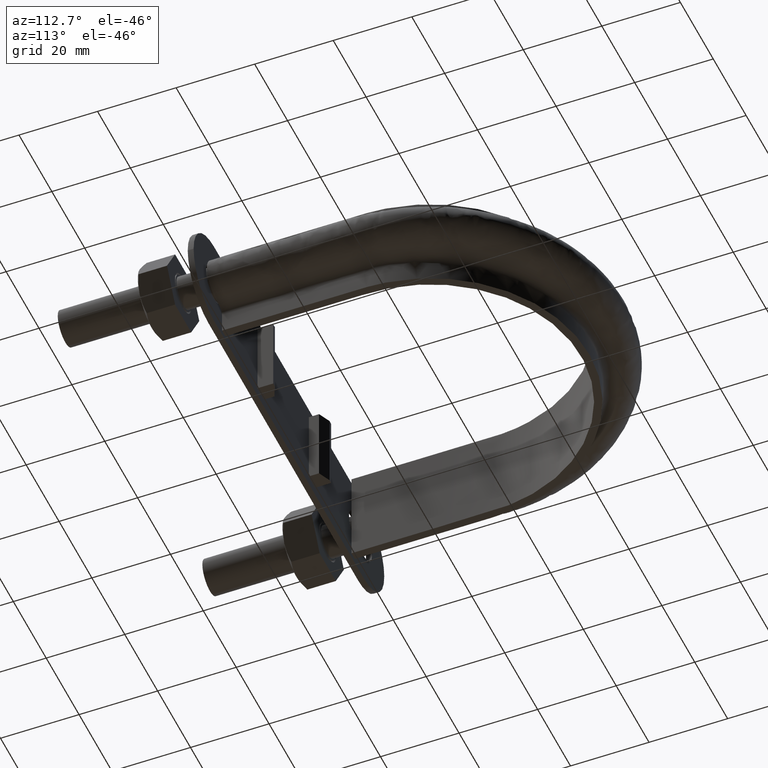
[diagram: clean part render]
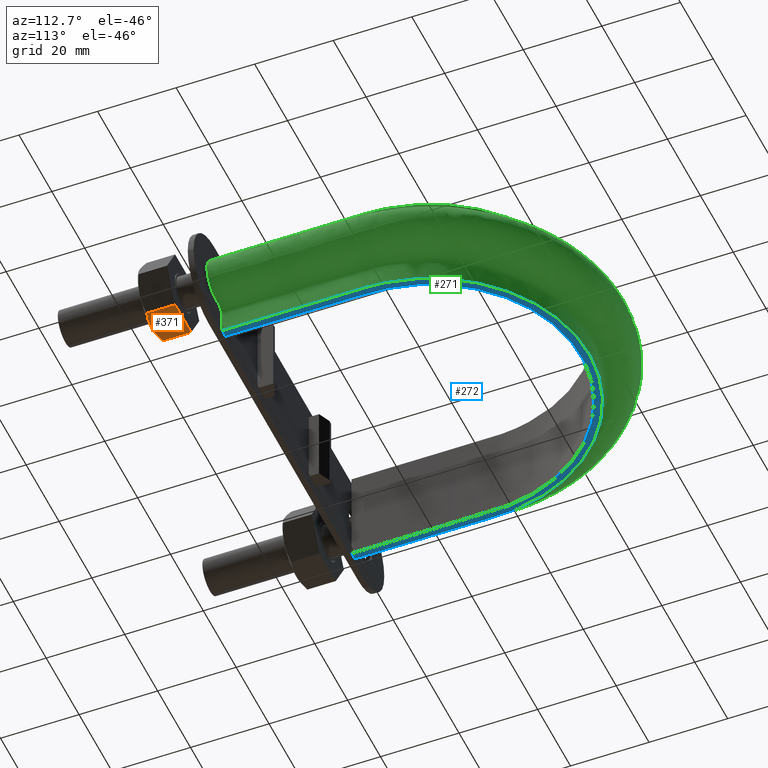
[diagram: same view with three faces highlighted in distinct colors, each labeled with its STEP entity id]
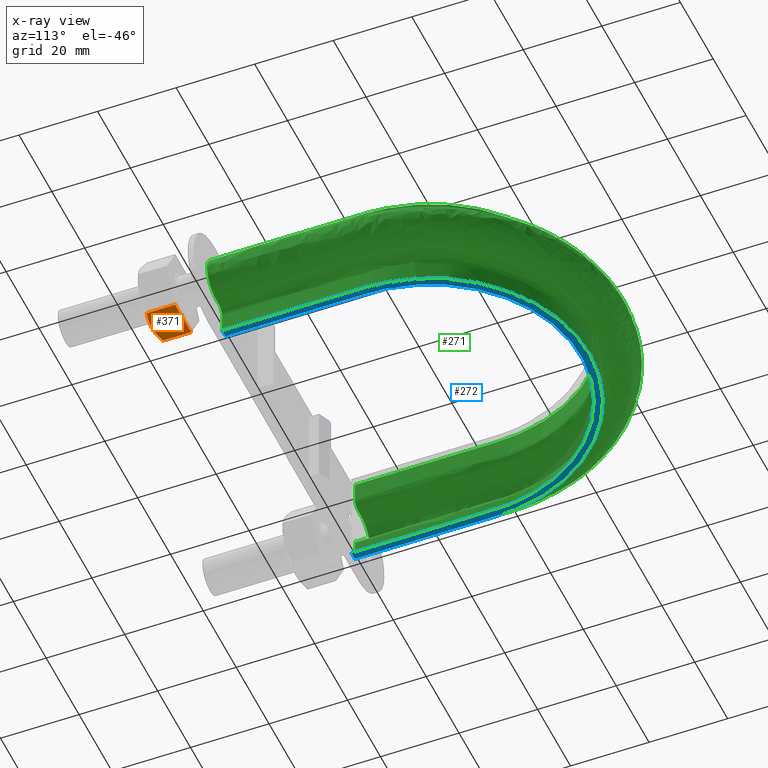
[diagram: x-ray of the same camera — body ghosted, the three highlighted faces saturated]
A machine part, auxiliary view with three faces highlighted in distinct colors.
The next image is the same camera in x-ray (body ghosted, the three faces saturated) — at least one of them is partly hidden behind the body in this view.
Their STEP definitions:

[orange] entity #371 — the highlighted planar face has unit normal (0, -0, 1).
#371 = ADVANCED_FACE( '', ( #617 ), #618, .F. );
#617 = FACE_OUTER_BOUND( '', #1699, .T. );
#618 = PLANE( '', #1700 );
#1699 = EDGE_LOOP( '', ( #2486, #2487, #2488, #2489, #2490 ) );
#1700 = AXIS2_PLACEMENT_3D( '', #2491, #2492, #2493 );
#2486 = ORIENTED_EDGE( '', *, *, #2777, .F. );
#2487 = ORIENTED_EDGE( '', *, *, #2778, .F. );
#2488 = ORIENTED_EDGE( '', *, *, #2776, .F. );
#2489 = ORIENTED_EDGE( '', *, *, #2756, .F. );
#2490 = ORIENTED_EDGE( '', *, *, #2779, .F. );
#2491 = CARTESIAN_POINT( '', ( 48.9074772881113, 30.0000000000000, -8.49999999999953 ) );
#2492 = DIRECTION( '', ( 2.52274493421808E-016, -6.12303176911189E-017, 1.00000000000000 ) );
#2493 = DIRECTION( '', ( 2.44921270764475E-016, 1.00000000000000, 6.12303176911189E-017 ) );
#2756 = EDGE_CURVE( '', #3138, #3140, #3141, .T. );
#2776 = EDGE_CURVE( '', #3140, #3168, #3170, .F. );
#2777 = EDGE_CURVE( '', #3108, #3171, #3172, .T. );
#2778 = EDGE_CURVE( '', #3168, #3108, #3173, .T. );
#2779 = EDGE_CURVE( '', #3171, #3138, #3174, .T. );
#3108 = VERTEX_POINT( '', #3931 );
#3138 = VERTEX_POINT( '', #3978 );
#3140 = VERTEX_POINT( '', #3980 );
#3141 = LINE( '', #3981, #3982 );
#3168 = VERTEX_POINT( '', #4047 );
#3170 = LINE( '', #4049, #4050 );
#3171 = VERTEX_POINT( '', #4051 );
#3172 = B_SPLINE_CURVE_WITH_KNOTS( '', 3, ( #4052, #4053, #4054, #4055, #4056, #4057 ), .UNSPECIFIED., .F., .F., ( 4, 2, 4 ), ( 0.0156840426092165, 0.0181633795370690, 0.0206427164649214 ), .UNSPECIFIED. );
#3173 = B_SPLINE_CURVE_WITH_KNOTS( '', 3, ( #4058, #4059, #4060, #4061, #4062, #4063 ), .UNSPECIFIED., .F., .F., ( 4, 2, 4 ), ( 0.0107224888714702, 0.0132032657403433, 0.0156840426092165 ), .UNSPECIFIED. );
#3174 = LINE( '', #4064, #4065 );
#3931 = CARTESIAN_POINT( '', ( 44.0000000000000, 22.0000000000005, -8.49999999999953 ) );
#3978 = CARTESIAN_POINT( '', ( 48.8774993593023, 30.0000000000000, -8.49999999999953 ) );
#3980 = CARTESIAN_POINT( '', ( 39.1225006406977, 30.0000000000000, -8.49999999999953 ) );
#3981 = CARTESIAN_POINT( '', ( 34.2000000000011, 30.0000000000000, -8.49999999999953 ) );
#3982 = VECTOR( '', #4397, 999.999999999962 );
#4047 = CARTESIAN_POINT( '', ( 39.1225006406977, 22.7505553499470, -8.49999999999953 ) );
#4049 = CARTESIAN_POINT( '', ( 39.1225006406977, 30.0000000000000, -8.49999999999953 ) );
#4050 = VECTOR( '', #4422, 1000.00000000002 );
#4051 = CARTESIAN_POINT( '', ( 48.8774993593023, 22.7505553499470, -8.49999999999953 ) );
#4052 = CARTESIAN_POINT( '', ( 44.0000000000000, 22.0000000000006, -8.49999999999953 ) );
#4053 = CARTESIAN_POINT( '', ( 44.8345940408717, 22.0000000000006, -8.49999999999953 ) );
#4054 = CARTESIAN_POINT( '', ( 45.6590982732014, 22.0723104611268, -8.49999999999953 ) );
#4055 = CARTESIAN_POINT( '', ( 47.2828074229592, 22.3339943747738, -8.49999999999953 ) );
#4056 = CARTESIAN_POINT( '', ( 48.0838578122267, 22.5225028103098, -8.49999999999953 ) );
#4057 = CARTESIAN_POINT( '', ( 48.8774993593023, 22.7505553499470, -8.49999999999953 ) );
#4058 = CARTESIAN_POINT( '', ( 39.1225006406977, 22.7505553499470, -8.49999999999953 ) );
#4059 = CARTESIAN_POINT( '', ( 39.9171260670594, 22.5222200930419, -8.49999999999953 ) );
#4060 = CARTESIAN_POINT( '', ( 40.7187973776765, 22.3336547117178, -8.49999999999953 ) );
#4061 = CARTESIAN_POINT( '', ( 42.3426188305541, 22.0721149177823, -8.49999999999953 ) );
#4062 = CARTESIAN_POINT( '', ( 43.1649212463886, 22.0000000000006, -8.49999999999953 ) );
#4063 = CARTESIAN_POINT( '', ( 44.0000000000000, 22.0000000000006, -8.49999999999953 ) );
#4064 = CARTESIAN_POINT( '', ( 48.8774993593023, 30.0000000000000, -8.49999999999953 ) );
#4065 = VECTOR( '', #4423, 1000.00000000002 );
#4397 = DIRECTION( '', ( -1.00000000000000, 2.44921270764475E-016, 2.52274493421808E-016 ) );
#4422 = DIRECTION( '', ( 2.44921270764475E-016, 1.00000000000000, 6.12303176911189E-017 ) );
#4423 = DIRECTION( '', ( 2.44921270764475E-016, 1.00000000000000, 6.12303176911189E-017 ) );

[blue] entity #272 — the highlighted planar face has unit normal (0, 0, 1).
#272 = ADVANCED_FACE( '', ( #393 ), #394, .F. );
#393 = FACE_OUTER_BOUND( '', #1177, .T. );
#394 = PLANE( '', #1178 );
#1177 = EDGE_LOOP( '', ( #1769, #1770, #1771, #1772 ) );
#1178 = AXIS2_PLACEMENT_3D( '', #1773, #1774, #1775 );
#1769 = ORIENTED_EDGE( '', *, *, #2555, .F. );
#1770 = ORIENTED_EDGE( '', *, *, #2558, .F. );
#1771 = ORIENTED_EDGE( '', *, *, #2546, .F. );
#1772 = ORIENTED_EDGE( '', *, *, #2557, .F. );
#1773 = CARTESIAN_POINT( '', ( 55.0000000000000, 137.300000000000, -12.5000000000000 ) );
#1774 = DIRECTION( '', ( 0.000000000000000, 0.000000000000000, 1.00000000000000 ) );
#1775 = DIRECTION( '', ( 1.22460635382238E-016, 1.00000000000000, 0.000000000000000 ) );
#2546 = EDGE_CURVE( '', #2787, #2788, #2789, .T. );
#2555 = EDGE_CURVE( '', #2802, #2804, #2805, .T. );
#2557 = EDGE_CURVE( '', #2804, #2787, #2807, .F. );
#2558 = EDGE_CURVE( '', #2788, #2802, #2808, .F. );
#2787 = VERTEX_POINT( '', #3194 );
#2788 = VERTEX_POINT( '', #3195 );
#2789 = LINE( '', #3196, #3197 );
#2802 = VERTEX_POINT( '', #3349 );
#2804 = VERTEX_POINT( '', #3381 );
#2805 = LINE( '', #3382, #3383 );
#2807 = B_SPLINE_CURVE_WITH_KNOTS( '', 3, ( #3386, #3387, #3388, #3389, #3390, #3391, #3392, #3393, #3394, #3395, #3396, #3397, #3398, #3399, #3400, #3401, #3402 ), .UNSPECIFIED., .F., .F., ( 4, 3, 1, 1, 1, 1, 1, 1, 1, 3, 4 ), ( -7.90274314416090, -7.00000000000000, -6.50000000000000, -6.00000000000000, -5.00000000000000, -4.00000000000000, -3.00000000000000, -2.00000000000000, -1.50000000000000, -1.00000000000000, -0.0972568558390958 ), .UNSPECIFIED. );
#2808 = B_SPLINE_CURVE_WITH_KNOTS( '', 3, ( #3403, #3404, #3405, #3406, #3407, #3408, #3409, #3410, #3411, #3412, #3413, #3414, #3415, #3416, #3417, #3418, #3419 ), .UNSPECIFIED., .F., .F., ( 4, 3, 1, 1, 1, 1, 1, 1, 1, 3, 4 ), ( 0.0972568558390956, 1.00000000000000, 1.50000000000000, 2.00000000000000, 3.00000000000000, 4.00000000000000, 5.00000000000000, 6.00000000000000, 6.50000000000000, 7.00000000000000, 7.90274314416090 ), .UNSPECIFIED. );
#3194 = CARTESIAN_POINT( '', ( 38.4000000000000, 38.3999999191477, -12.5000000000000 ) );
#3195 = CARTESIAN_POINT( '', ( 40.4000000000000, 38.3999999191477, -12.5000000000000 ) );
#3196 = CARTESIAN_POINT( '', ( 55.0000000000000, 38.3999999191477, -12.5000000000000 ) );
#3197 = VECTOR( '', #4080, 1000.00000000000 );
#3349 = CARTESIAN_POINT( '', ( -40.4000000000000, 38.3999999191477, -12.5000000000000 ) );
#3381 = CARTESIAN_POINT( '', ( -38.4000000000000, 38.3999999191477, -12.5000000000000 ) );
#3382 = CARTESIAN_POINT( '', ( 55.0000000000000, 38.3999999191477, -12.5000000000000 ) );
#3383 = VECTOR( '', #4084, 1000.00000000000 );
#3386 = CARTESIAN_POINT( '', ( 38.4000000000000, 38.3999999191477, -12.5000000000000 ) );
#3387 = CARTESIAN_POINT( '', ( 38.4000000000000, 50.4666666127651, -12.5000000000000 ) );
#3388 = CARTESIAN_POINT( '', ( 38.4000000000000, 62.5333333063826, -12.5000000000000 ) );
#3389 = CARTESIAN_POINT( '', ( 38.4000000000000, 74.6000000000000, -12.5000000000000 ) );
#3390 = CARTESIAN_POINT( '', ( 38.4000000000000, 77.9378960382428, -12.5000000000000 ) );
#3391 = CARTESIAN_POINT( '', ( 37.5004323173849, 84.6534987012364, -12.5000000000000 ) );
#3392 = CARTESIAN_POINT( '', ( 32.3590360537293, 97.1468427507952, -12.5000000000000 ) );
#3393 = CARTESIAN_POINT( '', ( 20.0971465093487, 109.410921736661, -12.5000000000000 ) );
#3394 = CARTESIAN_POINT( '', ( 2.79356000082899E-014, 114.794539131670, -12.5000000000000 ) );
#3395 = CARTESIAN_POINT( '', ( -20.0971465093486, 109.410921736661, -12.5000000000000 ) );
#3396 = CARTESIAN_POINT( '', ( -32.3590360537293, 97.1468427507952, -12.5000000000000 ) );
#3397 = CARTESIAN_POINT( '', ( -37.5004323173848, 84.6534987012364, -12.5000000000000 ) );
#3398 = CARTESIAN_POINT( '', ( -38.4000000000000, 77.9378960382428, -12.5000000000000 ) );
#3399 = CARTESIAN_POINT( '', ( -38.4000000000000, 74.6000000000000, -12.5000000000000 ) );
#3400 = CARTESIAN_POINT( '', ( -38.4000000000000, 62.5333333063826, -12.5000000000000 ) );
#3401 = CARTESIAN_POINT( '', ( -38.4000000000000, 50.4666666127652, -12.5000000000000 ) );
#3402 = CARTESIAN_POINT( '', ( -38.4000000000000, 38.3999999191477, -12.5000000000000 ) );
#3403 = CARTESIAN_POINT( '', ( -40.4000000000000, 38.3999999191477, -12.5000000000000 ) );
#3404 = CARTESIAN_POINT( '', ( -40.4000000000000, 50.4666666127652, -12.5000000000000 ) );
#3405 = CARTESIAN_POINT( '', ( -40.4000000000000, 62.5333333063826, -12.5000000000000 ) );
#3406 = CARTESIAN_POINT( '', ( -40.4000000000000, 74.6000000000000, -12.5000000000000 ) );
#3407 = CARTESIAN_POINT( '', ( -40.4000000000000, 78.1165288331969, -12.5000000000000 ) );
#3408 = CARTESIAN_POINT( '', ( -39.4544182095027, 85.1751790194886, -12.5000000000000 ) );
#3409 = CARTESIAN_POINT( '', ( -34.0439198137652, 98.3222802912663, -12.5000000000000 ) );
#3410 = CARTESIAN_POINT( '', ( -21.1440253219688, 111.223582281160, -12.5000000000000 ) );
#3411 = CARTESIAN_POINT( '', ( 3.16614390853843E-014, 116.888208859420, -12.5000000000000 ) );
#3412 = CARTESIAN_POINT( '', ( 21.1440253219689, 111.223582281160, -12.5000000000000 ) );
#3413 = CARTESIAN_POINT( '', ( 34.0439198137653, 98.3222802912663, -12.5000000000000 ) );
#3414 = CARTESIAN_POINT( '', ( 39.4544182095027, 85.1751790194886, -12.5000000000000 ) );
#3415 = CARTESIAN_POINT( '', ( 40.4000000000000, 78.1165288331968, -12.5000000000000 ) );
#3416 = CARTESIAN_POINT( '', ( 40.4000000000000, 74.6000000000000, -12.5000000000000 ) );
#3417 = CARTESIAN_POINT( '', ( 40.4000000000000, 62.5333333063826, -12.5000000000000 ) );
#3418 = CARTESIAN_POINT( '', ( 40.4000000000000, 50.4666666127652, -12.5000000000000 ) );
#3419 = CARTESIAN_POINT( '', ( 40.4000000000000, 38.3999999191478, -12.5000000000000 ) );
#4080 = DIRECTION( '', ( 1.00000000000000, 0.000000000000000, 0.000000000000000 ) );
#4084 = DIRECTION( '', ( 1.00000000000000, 0.000000000000000, 0.000000000000000 ) );

[green] entity #271 — the highlighted face is a freeform B-spline surface patch.
#271 = ADVANCED_FACE( '', ( #391 ), #392, .F. );
#391 = FACE_OUTER_BOUND( '', #649, .T. );
#392 = B_SPLINE_SURFACE_WITH_KNOTS( '', 3, 3, ( ( #650, #651, #652, #653, #654, #655, #656, #657, #658, #659, #660, #661, #662, #663, #664, #665, #666 ), ( #667, #668, #669, #670, #671, #672, #673, #674, #675, #676, #677, #678, #679, #680, #681, #682, #683 ), ( #684, #685, #686, #687, #688, #689, #690, #691, #692, #693, #694, #695, #696, #697, #698, #699, #700 ), ( #701, #702, #703, #704, #705, #706, #707, #708, #709, #710, #711, #712, #713, #714, #715, #716, #717 ), ( #718, #719, #720, #721, #722, #723, #724, #725, #726, #727, #728, #729, #730, #731, #732, #733, #734 ), ( #735, #736, #737, #738, #739, #740, #741, #742, #743, #744, #745, #746, #747, #748, #749, #750, #751 ), ( #752, #753, #754, #755, #756, #757, #758, #759, #760, #761, #762, #763, #764, #765, #766, #767, #768 ), ( #769, #770, #771, #772, #773, #774, #775, #776, #777, #778, #779, #780, #781, #782, #783, #784, #785 ), ( #786, #787, #788, #789, #790, #791, #792, #793, #794, #795, #796, #797, #798, #799, #800, #801, #802 ), ( #803, #804, #805, #806, #807, #808, #809, #810, #811, #812, #813, #814, #815, #816, #817, #818, #819 ), ( #820, #821, #822, #823, #824, #825, #826, #827, #828, #829, #830, #831, #832, #833, #834, #835, #836 ), ( #837, #838, #839, #840, #841, #842, #843, #844, #845, #846, #847, #848, #849, #850, #851, #852, #853 ), ( #854, #855, #856, #857, #858, #859, #860, #861, #862, #863, #864, #865, #866, #867, #868, #869, #870 ), ( #871, #872, #873, #874, #875, #876, #877, #878, #879, #880, #881, #882, #883, #884, #885, #886, #887 ), ( #888, #889, #890, #891, #892, #893, #894, #895, #896, #897, #898, #899, #900, #901, #902, #903, #904 ), ( #905, #906, #907, #908, #909, #910, #911, #912, #913, #914, #915, #916, #917, #918, #919, #920, #921 ), ( #922, #923, #924, #925, #926, #927, #928, #929, #930, #931, #932, #933, #934, #935, #936, #937, #938 ), ( #939, #940, #941, #942, #943, #944, #945, #946, #947, #948, #949, #950, #951, #952, #953, #954, #955 ), ( #956, #957, #958, #959, #960, #961, #962, #963, #964, #965, #966, #967, #968, #969, #970, #971, #972 ), ( #973, #974, #975, #976, #977, #978, #979, #980, #981, #982, #983, #984, #985, #986, #987, #988, #989 ), ( #990, #991, #992, #993, #994, #995, #996, #997, #998, #999, #1000, #1001, #1002, #1003, #1004, #1005, #1006 ), ( #1007, #1008, #1009, #1010, #1011, #1012, #1013, #1014, #1015, #1016, #1017, #1018, #1019, #1020, #1021, #1022, #1023 ), ( #1024, #1025, #1026, #1027, #1028, #1029, #1030, #1031, #1032, #1033, #1034, #1035, #1036, #1037, #1038, #1039, #1040 ), ( #1041, #1042, #1043, #1044, #1045, #1046, #1047, #1048, #1049, #1050, #1051, #1052, #1053, #1054, #1055, #1056, #1057 ), ( #1058, #1059, #1060, #1061, #1062, #1063, #1064, #1065, #1066, #1067, #1068, #1069, #1070, #1071, #1072, #1073, #1074 ), ( #1075, #1076, #1077, #1078, #1079, #1080, #1081, #1082, #1083, #1084, #1085, #1086, #1087, #1088, #1089, #1090, #1091 ), ( #1092, #1093, #1094, #1095, #1096, #1097, #1098, #1099, #1100, #1101, #1102, #1103, #1104, #1105, #1106, #1107, #1108 ), ( #1109, #1110, #1111, #1112, #1113, #1114, #1115, #1116, #1117, #1118, #1119, #1120, #1121, #1122, #1123, #1124, #1125 ), ( #1126, #1127, #1128, #1129, #1130, #1131, #1132, #1133, #1134, #1135, #1136, #1137, #1138, #1139, #1140, #1141, #1142 ), ( #1143, #1144, #1145, #1146, #1147, #1148, #1149, #1150, #1151, #1152, #1153, #1154, #1155, #1156, #1157, #1158, #1159 ), ( #1160, #1161, #1162, #1163, #1164, #1165, #1166, #1167, #1168, #1169, #1170, #1171, #1172, #1173, #1174, #1175, #1176 ) ), .UNSPECIFIED., .F., .F., .F., ( 4, 3, 1, 1, 1, 3, 3, 1, 1, 1, 3, 3, 1, 1, 1, 3, 4 ), ( 4, 3, 1, 1, 1, 1, 1, 1, 1, 3, 4 ), ( 0.105263157894737, 0.157894736842105, 0.210526315789474, 0.263157894736842, 0.315789473684211, 0.368421052631579, 0.421052631578947, 0.473684210526316, 0.526315789473684, 0.578947368421053, 0.631578947368421, 0.684210526315789, 0.736842105263158, 0.789473684210526, 0.842105263157895, 0.894736842105263, 0.947368421052632 ), ( 0.000000000000000, 1.00000000000000, 1.50000000000000, 2.00000000000000, 3.00000000000000, 4.00000000000000, 5.00000000000000, 6.00000000000000, 6.50000000000000, 7.00000000000000, 8.00000000000000 ), .UNSPECIFIED. );
#649 = EDGE_LOOP( '', ( #1765, #1766, #1767, #1768 ) );
#650 = CARTESIAN_POINT( '', ( -40.4000000000000, 34.5000000000000, 12.5000000000000 ) );
#651 = CARTESIAN_POINT( '', ( -40.4000000000000, 47.8666666666667, 12.5000000000000 ) );
#652 = CARTESIAN_POINT( '', ( -40.4000000000000, 61.2333333333333, 12.5000000000000 ) );
#653 = CARTESIAN_POINT( '', ( -40.4000000000000, 74.6000000000000, 12.5000000000000 ) );
#654 = CARTESIAN_POINT( '', ( -40.4000000000000, 78.1165288331969, 12.5000000000000 ) );
#655 = CARTESIAN_POINT( '', ( -39.4544182095027, 85.1751790194886, 12.5000000000000 ) );
#656 = CARTESIAN_POINT( '', ( -34.0439198137652, 98.3222802912663, 12.5000000000000 ) );
#657 = CARTESIAN_POINT( '', ( -21.1440253219688, 111.223582281160, 12.5000000000000 ) );
#658 = CARTESIAN_POINT( '', ( 2.90593538714191E-014, 116.888208859420, 12.5000000000000 ) );
#659 = CARTESIAN_POINT( '', ( 21.1440253219689, 111.223582281160, 12.5000000000000 ) );
#660 = CARTESIAN_POINT( '', ( 34.0439198137653, 98.3222802912663, 12.5000000000000 ) );
#661 = CARTESIAN_POINT( '', ( 39.4544182095027, 85.1751790194886, 12.5000000000000 ) );
#662 = CARTESIAN_POINT( '', ( 40.4000000000000, 78.1165288331969, 12.5000000000000 ) );
#663 = CARTESIAN_POINT( '', ( 40.4000000000000, 74.6000000000000, 12.5000000000000 ) );
#664 = CARTESIAN_POINT( '', ( 40.4000000000000, 61.2333333333333, 12.5000000000000 ) );
#665 = CARTESIAN_POINT( '', ( 40.4000000000000, 47.8666666666666, 12.5000000000000 ) );
#666 = CARTESIAN_POINT( '', ( 40.4000000000000, 34.5000000000000, 12.5000000000000 ) );
#667 = CARTESIAN_POINT( '', ( -40.4000000000000, 34.5000000000000, 10.8666666666667 ) );
#668 = CARTESIAN_POINT( '', ( -40.4000000000000, 47.8666666666667, 10.8666666666667 ) );
#669 = CARTESIAN_POINT( '', ( -40.4000000000000, 61.2333333333334, 10.8666666666667 ) );
#670 = CARTESIAN_POINT( '', ( -40.4000000000000, 74.6000000000000, 10.8666666666667 ) );
#671 = CARTESIAN_POINT( '', ( -40.4000000000000, 78.1165288331969, 10.8666666666667 ) );
#672 = CARTESIAN_POINT( '', ( -39.4544182095027, 85.1751790194886, 10.8666666666666 ) );
#673 = CARTESIAN_POINT( '', ( -34.0439198137652, 98.3222802912663, 10.8666666666667 ) );
#674 = CARTESIAN_POINT( '', ( -21.1440253219688, 111.223582281160, 10.8666666666667 ) );
#675 = CARTESIAN_POINT( '', ( 2.90593538714191E-014, 116.888208859420, 10.8666666666667 ) );
#676 = CARTESIAN_POINT( '', ( 21.1440253219689, 111.223582281160, 10.8666666666667 ) );
#677 = CARTESIAN_POINT( '', ( 34.0439198137653, 98.3222802912663, 10.8666666666667 ) );
#678 = CARTESIAN_POINT( '', ( 39.4544182095027, 85.1751790194886, 10.8666666666666 ) );
#679 = CARTESIAN_POINT( '', ( 40.4000000000000, 78.1165288331968, 10.8666666666667 ) );
#680 = CARTESIAN_POINT( '', ( 40.4000000000000, 74.6000000000000, 10.8666666666667 ) );
#681 = CARTESIAN_POINT( '', ( 40.4000000000000, 61.2333333333333, 10.8666666666667 ) );
#682 = CARTESIAN_POINT( '', ( 40.4000000000000, 47.8666666666666, 10.8666666666667 ) );
#683 = CARTESIAN_POINT( '', ( 40.4000000000000, 34.5000000000000, 10.8666666666667 ) );
#684 = CARTESIAN_POINT( '', ( -40.4000000000000, 34.5000000000000, 9.23333333333332 ) );
#685 = CARTESIAN_POINT( '', ( -40.4000000000000, 47.8666666666667, 9.23333333333332 ) );
#686 = CARTESIAN_POINT( '', ( -40.4000000000000, 61.2333333333334, 9.23333333333332 ) );
#687 = CARTESIAN_POINT( '', ( -40.4000000000000, 74.6000000000000, 9.23333333333332 ) );
#688 = CARTESIAN_POINT( '', ( -40.4000000000000, 78.1165288331969, 9.23333333333332 ) );
#689 = CARTESIAN_POINT( '', ( -39.4544182095027, 85.1751790194886, 9.23333333333331 ) );
#690 = CARTESIAN_POINT( '', ( -34.0439198137652, 98.3222802912663, 9.23333333333333 ) );
#691 = CARTESIAN_POINT( '', ( -21.1440253219688, 111.223582281160, 9.23333333333332 ) );
#692 = CARTESIAN_POINT( '', ( 2.90593538714191E-014, 116.888208859420, 9.23333333333332 ) );
#693 = CARTESIAN_POINT( '', ( 21.1440253219689, 111.223582281160, 9.23333333333332 ) );
#694 = CARTESIAN_POINT( '', ( 34.0439198137653, 98.3222802912663, 9.23333333333332 ) );
#695 = CARTESIAN_POINT( '', ( 39.4544182095027, 85.1751790194886, 9.23333333333331 ) );
#696 = CARTESIAN_POINT( '', ( 40.4000000000000, 78.1165288331968, 9.23333333333332 ) );
#697 = CARTESIAN_POINT( '', ( 40.4000000000000, 74.6000000000000, 9.23333333333332 ) );
#698 = CARTESIAN_POINT( '', ( 40.4000000000000, 61.2333333333333, 9.23333333333332 ) );
#699 = CARTESIAN_POINT( '', ( 40.4000000000000, 47.8666666666666, 9.23333333333332 ) );
#700 = CARTESIAN_POINT( '', ( 40.4000000000000, 34.5000000000000, 9.23333333333332 ) );
#701 = CARTESIAN_POINT( '', ( -40.4000000000000, 34.5000000000000, 7.59999999999998 ) );
#702 = CARTESIAN_POINT( '', ( -40.4000000000000, 47.8666666666667, 7.59999999999998 ) );
#703 = CARTESIAN_POINT( '', ( -40.4000000000000, 61.2333333333334, 7.59999999999998 ) );
#704 = CARTESIAN_POINT( '', ( -40.4000000000000, 74.6000000000000, 7.59999999999998 ) );
#705 = CARTESIAN_POINT( '', ( -40.4000000000000, 78.1165288331969, 7.59999999999998 ) );
#706 = CARTESIAN_POINT( '', ( -39.4544182095027, 85.1751790194886, 7.59999999999997 ) );
#707 = CARTESIAN_POINT( '', ( -34.0439198137652, 98.3222802912663, 7.59999999999999 ) );
#708 = CARTESIAN_POINT( '', ( -21.1440253219688, 111.223582281160, 7.59999999999998 ) );
#709 = CARTESIAN_POINT( '', ( 3.07940773473959E-014, 116.888208859420, 7.59999999999998 ) );
#710 = CARTESIAN_POINT( '', ( 21.1440253219689, 111.223582281160, 7.59999999999998 ) );
#711 = CARTESIAN_POINT( '', ( 34.0439198137653, 98.3222802912663, 7.59999999999999 ) );
#712 = CARTESIAN_POINT( '', ( 39.4544182095027, 85.1751790194886, 7.59999999999997 ) );
#713 = CARTESIAN_POINT( '', ( 40.4000000000000, 78.1165288331968, 7.59999999999998 ) );
#714 = CARTESIAN_POINT( '', ( 40.4000000000000, 74.6000000000000, 7.59999999999998 ) );
#715 = CARTESIAN_POINT( '', ( 40.4000000000000, 61.2333333333333, 7.59999999999998 ) );
#716 = CARTESIAN_POINT( '', ( 40.4000000000000, 47.8666666666666, 7.59999999999998 ) );
#717 = CARTESIAN_POINT( '', ( 40.4000000000000, 34.5000000000000, 7.59999999999998 ) );
#718 = CARTESIAN_POINT( '', ( -40.4000000000000, 34.5000000000000, 7.33823584172332 ) );
#719 = CARTESIAN_POINT( '', ( -40.4000000000000, 47.8666666666667, 7.33823584172332 ) );
#720 = CARTESIAN_POINT( '', ( -40.4000000000000, 61.2333333333334, 7.33823584172332 ) );
#721 = CARTESIAN_POINT( '', ( -40.4000000000000, 74.6000000000000, 7.33823584172332 ) );
#722 = CARTESIAN_POINT( '', ( -40.4000000000000, 78.1165288331969, 7.33823584172332 ) );
#723 = CARTESIAN_POINT( '', ( -39.4544182095027, 85.1751790194886, 7.33823584172331 ) );
#724 = CARTESIAN_POINT( '', ( -34.0439198137652, 98.3222802912663, 7.33823584172332 ) );
#725 = CARTESIAN_POINT( '', ( -21.1440253219688, 111.223582281160, 7.33823584172331 ) );
#726 = CARTESIAN_POINT( '', ( 2.90593538714191E-014, 116.888208859420, 7.33823584172331 ) );
#727 = CARTESIAN_POINT( '', ( 21.1440253219689, 111.223582281160, 7.33823584172331 ) );
#728 = CARTESIAN_POINT( '', ( 34.0439198137653, 98.3222802912663, 7.33823584172332 ) );
#729 = CARTESIAN_POINT( '', ( 39.4544182095027, 85.1751790194886, 7.33823584172331 ) );
#730 = CARTESIAN_POINT( '', ( 40.4000000000000, 78.1165288331969, 7.33823584172332 ) );
#731 = CARTESIAN_POINT( '', ( 40.4000000000000, 74.6000000000000, 7.33823584172332 ) );
#732 = CARTESIAN_POINT( '', ( 40.4000000000000, 61.2333333333333, 7.33823584172332 ) );
#733 = CARTESIAN_POINT( '', ( 40.4000000000000, 47.8666666666666, 7.33823584172332 ) );
#734 = CARTESIAN_POINT( '', ( 40.4000000000000, 34.5000000000000, 7.33823584172332 ) );
#735 = CARTESIAN_POINT( '', ( -40.5041362568359, 34.5000000000000, 6.81470752516999 ) );
#736 = CARTESIAN_POINT( '', ( -40.5041362568359, 47.8666666666667, 6.81470752516999 ) );
#737 = CARTESIAN_POINT( '', ( -40.5041362568359, 61.2333333333334, 6.81470752516999 ) );
#738 = CARTESIAN_POINT( '', ( -40.5041362568359, 74.6000000000000, 6.81470752516999 ) );
#739 = CARTESIAN_POINT( '', ( -40.5041362568359, 78.1258299085042, 6.81470752516999 ) );
#740 = CARTESIAN_POINT( '', ( -39.5561585978603, 85.2023419372925, 6.81470752516998 ) );
#741 = CARTESIAN_POINT( '', ( -34.1316485577521, 98.3834831240708, 6.81470752516999 ) );
#742 = CARTESIAN_POINT( '', ( -21.1985343424224, 111.317964123169, 6.81470752516999 ) );
#743 = CARTESIAN_POINT( '', ( 2.99400654675047E-014, 116.997222323669, 6.81470752516999 ) );
#744 = CARTESIAN_POINT( '', ( 21.1985343424224, 111.317964123169, 6.81470752516999 ) );
#745 = CARTESIAN_POINT( '', ( 34.1316485577522, 98.3834831240708, 6.81470752516999 ) );
#746 = CARTESIAN_POINT( '', ( 39.5561585978604, 85.2023419372925, 6.81470752516998 ) );
#747 = CARTESIAN_POINT( '', ( 40.5041362568359, 78.1258299085042, 6.81470752516999 ) );
#748 = CARTESIAN_POINT( '', ( 40.5041362568359, 74.6000000000000, 6.81470752516999 ) );
#749 = CARTESIAN_POINT( '', ( 40.5041362568359, 61.2333333333333, 6.81470752516999 ) );
#750 = CARTESIAN_POINT( '', ( 40.5041362568359, 47.8666666666666, 6.81470752516999 ) );
#751 = CARTESIAN_POINT( '', ( 40.5041362568359, 34.5000000000000, 6.81470752516999 ) );
#752 = CARTESIAN_POINT( '', ( -40.9489687109389, 34.5000000000000, 6.14896871093886 ) );
#753 = CARTESIAN_POINT( '', ( -40.9489687109389, 47.8666666666667, 6.14896871093886 ) );
#754 = CARTESIAN_POINT( '', ( -40.9489687109389, 61.2333333333334, 6.14896871093886 ) );
#755 = CARTESIAN_POINT( '', ( -40.9489687109389, 74.6000000000000, 6.14896871093886 ) );
#756 = CARTESIAN_POINT( '', ( -40.9489687109389, 78.1655607407855, 6.14896871093886 ) );
#757 = CARTESIAN_POINT( '', ( -39.9907567676970, 85.3183721054052, 6.14896871093885 ) );
#758 = CARTESIAN_POINT( '', ( -34.5063940466797, 98.6449195069571, 6.14896871093886 ) );
#759 = CARTESIAN_POINT( '', ( -21.4313771781055, 111.721129242402, 6.14896871093885 ) );
#760 = CARTESIAN_POINT( '', ( 2.91297294986359E-014, 117.462888445207, 6.14896871093886 ) );
#761 = CARTESIAN_POINT( '', ( 21.4313771781055, 111.721129242402, 6.14896871093885 ) );
#762 = CARTESIAN_POINT( '', ( 34.5063940466797, 98.6449195069571, 6.14896871093886 ) );
#763 = CARTESIAN_POINT( '', ( 39.9907567676970, 85.3183721054051, 6.14896871093885 ) );
#764 = CARTESIAN_POINT( '', ( 40.9489687109389, 78.1655607407855, 6.14896871093886 ) );
#765 = CARTESIAN_POINT( '', ( 40.9489687109389, 74.6000000000000, 6.14896871093886 ) );
#766 = CARTESIAN_POINT( '', ( 40.9489687109389, 61.2333333333333, 6.14896871093886 ) );
#767 = CARTESIAN_POINT( '', ( 40.9489687109389, 47.8666666666666, 6.14896871093886 ) );
#768 = CARTESIAN_POINT( '', ( 40.9489687109389, 34.5000000000000, 6.14896871093886 ) );
#769 = CARTESIAN_POINT( '', ( -41.6147075251700, 34.5000000000000, 5.70413625683589 ) );
#770 = CARTESIAN_POINT( '', ( -41.6147075251700, 47.8666666666667, 5.70413625683589 ) );
#771 = CARTESIAN_POINT( '', ( -41.6147075251700, 61.2333333333334, 5.70413625683589 ) );
#772 = CARTESIAN_POINT( '', ( -41.6147075251700, 74.6000000000000, 5.70413625683589 ) );
#773 = CARTESIAN_POINT( '', ( -41.6147075251700, 78.2250221333333, 5.70413625683589 ) );
#774 = CARTESIAN_POINT( '', ( -40.6411788931184, 85.4920235236456, 5.70413625683588 ) );
#775 = CARTESIAN_POINT( '', ( -35.0672403049415, 99.0361867041550, 5.70413625683589 ) );
#776 = CARTESIAN_POINT( '', ( -21.7798511077842, 112.324508483151, 5.70413625683588 ) );
#777 = CARTESIAN_POINT( '', ( 2.83477128553322E-014, 118.159807046179, 5.70413625683589 ) );
#778 = CARTESIAN_POINT( '', ( 21.7798511077843, 112.324508483151, 5.70413625683588 ) );
#779 = CARTESIAN_POINT( '', ( 35.0672403049415, 99.0361867041550, 5.70413625683589 ) );
#780 = CARTESIAN_POINT( '', ( 40.6411788931185, 85.4920235236456, 5.70413625683588 ) );
#781 = CARTESIAN_POINT( '', ( 41.6147075251700, 78.2250221333333, 5.70413625683589 ) );
#782 = CARTESIAN_POINT( '', ( 41.6147075251700, 74.6000000000000, 5.70413625683589 ) );
#783 = CARTESIAN_POINT( '', ( 41.6147075251700, 61.2333333333333, 5.70413625683589 ) );
#784 = CARTESIAN_POINT( '', ( 41.6147075251700, 47.8666666666666, 5.70413625683589 ) );
#785 = CARTESIAN_POINT( '', ( 41.6147075251700, 34.5000000000000, 5.70413625683589 ) );
#786 = CARTESIAN_POINT( '', ( -42.1382358417233, 34.5000000000000, 5.59999999999998 ) );
#787 = CARTESIAN_POINT( '', ( -42.1382358417233, 47.8666666666667, 5.59999999999998 ) );
#788 = CARTESIAN_POINT( '', ( -42.1382358417233, 61.2333333333334, 5.59999999999998 ) );
#789 = CARTESIAN_POINT( '', ( -42.1382358417233, 74.6000000000000, 5.59999999999998 ) );
#790 = CARTESIAN_POINT( '', ( -42.1382358417233, 78.2717817965451, 5.59999999999998 ) );
#791 = CARTESIAN_POINT( '', ( -41.1526623654531, 85.6285807330424, 5.59999999999997 ) );
#792 = CARTESIAN_POINT( '', ( -35.5082824841813, 99.3438741225433, 5.59999999999998 ) );
#793 = CARTESIAN_POINT( '', ( -22.0538864589874, 112.798998044823, 5.59999999999998 ) );
#794 = CARTESIAN_POINT( '', ( 2.84148271241585E-014, 118.707854740173, 5.59999999999998 ) );
#795 = CARTESIAN_POINT( '', ( 22.0538864589875, 112.798998044823, 5.59999999999997 ) );
#796 = CARTESIAN_POINT( '', ( 35.5082824841814, 99.3438741225433, 5.59999999999998 ) );
#797 = CARTESIAN_POINT( '', ( 41.1526623654532, 85.6285807330424, 5.59999999999997 ) );
#798 = CARTESIAN_POINT( '', ( 42.1382358417234, 78.2717817965451, 5.59999999999998 ) );
#799 = CARTESIAN_POINT( '', ( 42.1382358417234, 74.6000000000000, 5.59999999999998 ) );
#800 = CARTESIAN_POINT( '', ( 42.1382358417233, 61.2333333333333, 5.59999999999998 ) );
#801 = CARTESIAN_POINT( '', ( 42.1382358417233, 47.8666666666666, 5.59999999999998 ) );
#802 = CARTESIAN_POINT( '', ( 42.1382358417233, 34.5000000000000, 5.59999999999998 ) );
#803 = CARTESIAN_POINT( '', ( -42.4000000000000, 34.5000000000000, 5.59999999999998 ) );
#804 = CARTESIAN_POINT( '', ( -42.4000000000000, 47.8666666666667, 5.59999999999998 ) );
#805 = CARTESIAN_POINT( '', ( -42.4000000000000, 61.2333333333334, 5.59999999999998 ) );
#806 = CARTESIAN_POINT( '', ( -42.4000000000000, 74.6000000000000, 5.59999999999998 ) );
#807 = CARTESIAN_POINT( '', ( -42.4000000000000, 78.2951616281509, 5.59999999999998 ) );
#808 = CARTESIAN_POINT( '', ( -41.4084041016205, 85.6968593377408, 5.59999999999997 ) );
#809 = CARTESIAN_POINT( '', ( -35.7288035738012, 99.4977178317373, 5.59999999999998 ) );
#810 = CARTESIAN_POINT( '', ( -22.1909041345891, 113.036242825660, 5.59999999999998 ) );
#811 = CARTESIAN_POINT( '', ( 2.84483842585716E-014, 118.981878587170, 5.59999999999998 ) );
#812 = CARTESIAN_POINT( '', ( 22.1909041345891, 113.036242825660, 5.59999999999997 ) );
#813 = CARTESIAN_POINT( '', ( 35.7288035738013, 99.4977178317374, 5.59999999999998 ) );
#814 = CARTESIAN_POINT( '', ( 41.4084041016205, 85.6968593377408, 5.59999999999997 ) );
#815 = CARTESIAN_POINT( '', ( 42.4000000000000, 78.2951616281509, 5.59999999999998 ) );
#816 = CARTESIAN_POINT( '', ( 42.4000000000000, 74.6000000000000, 5.59999999999998 ) );
#817 = CARTESIAN_POINT( '', ( 42.4000000000000, 61.2333333333333, 5.59999999999998 ) );
#818 = CARTESIAN_POINT( '', ( 42.4000000000000, 47.8666666666666, 5.59999999999998 ) );
#819 = CARTESIAN_POINT( '', ( 42.4000000000000, 34.5000000000000, 5.59999999999998 ) );
#820 = CARTESIAN_POINT( '', ( -42.9333333333333, 34.5000000000000, 5.60000000000000 ) );
#821 = CARTESIAN_POINT( '', ( -42.9333333333333, 47.8666666666667, 5.60000000000000 ) );
#822 = CARTESIAN_POINT( '', ( -42.9333333333333, 61.2333333333334, 5.60000000000000 ) );
#823 = CARTESIAN_POINT( '', ( -42.9333333333333, 74.6000000000000, 5.60000000000000 ) );
#824 = CARTESIAN_POINT( '', ( -42.9333333333333, 78.3427970401387, 5.60000000000000 ) );
#825 = CARTESIAN_POINT( '', ( -41.9294670061852, 85.8359740892748, 5.59999999999999 ) );
#826 = CARTESIAN_POINT( '', ( -36.1781059098108, 99.8111678425296, 5.60000000000001 ) );
#827 = CARTESIAN_POINT( '', ( -22.4700718179544, 113.519618970859, 5.60000000000000 ) );
#828 = CARTESIAN_POINT( '', ( 3.02514789679193E-014, 119.540190514570, 5.60000000000000 ) );
#829 = CARTESIAN_POINT( '', ( 22.4700718179545, 113.519618970859, 5.60000000000000 ) );
#830 = CARTESIAN_POINT( '', ( 36.1781059098109, 99.8111678425296, 5.60000000000000 ) );
#831 = CARTESIAN_POINT( '', ( 41.9294670061853, 85.8359740892747, 5.60000000000000 ) );
#832 = CARTESIAN_POINT( '', ( 42.9333333333334, 78.3427970401387, 5.60000000000000 ) );
#833 = CARTESIAN_POINT( '', ( 42.9333333333334, 74.6000000000000, 5.60000000000000 ) );
#834 = CARTESIAN_POINT( '', ( 42.9333333333333, 61.2333333333333, 5.60000000000000 ) );
#835 = CARTESIAN_POINT( '', ( 42.9333333333333, 47.8666666666666, 5.60000000000000 ) );
#836 = CARTESIAN_POINT( '', ( 42.9333333333333, 34.5000000000000, 5.60000000000000 ) );
#837 = CARTESIAN_POINT( '', ( -43.4666666666666, 34.5000000000000, 5.60000000000000 ) );
#838 = CARTESIAN_POINT( '', ( -43.4666666666666, 47.8666666666667, 5.60000000000000 ) );
#839 = CARTESIAN_POINT( '', ( -43.4666666666666, 61.2333333333334, 5.60000000000000 ) );
#840 = CARTESIAN_POINT( '', ( -43.4666666666666, 74.6000000000000, 5.60000000000000 ) );
#841 = CARTESIAN_POINT( '', ( -43.4666666666667, 78.3904324521265, 5.60000000000000 ) );
#842 = CARTESIAN_POINT( '', ( -42.4505299107500, 85.9750888408087, 5.59999999999999 ) );
#843 = CARTESIAN_POINT( '', ( -36.6274082458204, 100.124617853322, 5.60000000000001 ) );
#844 = CARTESIAN_POINT( '', ( -22.7492395013198, 114.002995116059, 5.60000000000000 ) );
#845 = CARTESIAN_POINT( '', ( 2.68504032493366E-014, 120.098502441970, 5.60000000000000 ) );
#846 = CARTESIAN_POINT( '', ( 22.7492395013199, 114.002995116059, 5.60000000000000 ) );
#847 = CARTESIAN_POINT( '', ( 36.6274082458205, 100.124617853322, 5.60000000000000 ) );
#848 = CARTESIAN_POINT( '', ( 42.4505299107500, 85.9750888408087, 5.60000000000000 ) );
#849 = CARTESIAN_POINT( '', ( 43.4666666666667, 78.3904324521264, 5.60000000000000 ) );
#850 = CARTESIAN_POINT( '', ( 43.4666666666667, 74.6000000000000, 5.60000000000000 ) );
#851 = CARTESIAN_POINT( '', ( 43.4666666666667, 61.2333333333333, 5.60000000000000 ) );
#852 = CARTESIAN_POINT( '', ( 43.4666666666667, 47.8666666666666, 5.60000000000000 ) );
#853 = CARTESIAN_POINT( '', ( 43.4666666666667, 34.5000000000000, 5.60000000000000 ) );
#854 = CARTESIAN_POINT( '', ( -44.0000000000000, 34.5000000000000, 5.60000000000000 ) );
#855 = CARTESIAN_POINT( '', ( -44.0000000000000, 47.8666666666667, 5.60000000000000 ) );
#856 = CARTESIAN_POINT( '', ( -44.0000000000000, 61.2333333333334, 5.60000000000000 ) );
#857 = CARTESIAN_POINT( '', ( -44.0000000000000, 74.6000000000000, 5.60000000000000 ) );
#858 = CARTESIAN_POINT( '', ( -44.0000000000000, 78.4380678641142, 5.60000000000000 ) );
#859 = CARTESIAN_POINT( '', ( -42.9715928153147, 86.1142035923426, 5.59999999999999 ) );
#860 = CARTESIAN_POINT( '', ( -37.0767105818300, 100.438067864114, 5.60000000000001 ) );
#861 = CARTESIAN_POINT( '', ( -23.0284071846852, 114.486371261259, 5.60000000000000 ) );
#862 = CARTESIAN_POINT( '', ( 2.86534979586843E-014, 120.656814369370, 5.60000000000000 ) );
#863 = CARTESIAN_POINT( '', ( 23.0284071846853, 114.486371261259, 5.60000000000000 ) );
#864 = CARTESIAN_POINT( '', ( 37.0767105818301, 100.438067864114, 5.60000000000000 ) );
#865 = CARTESIAN_POINT( '', ( 42.9715928153148, 86.1142035923426, 5.60000000000000 ) );
#866 = CARTESIAN_POINT( '', ( 44.0000000000000, 78.4380678641142, 5.60000000000000 ) );
#867 = CARTESIAN_POINT( '', ( 44.0000000000000, 74.6000000000000, 5.60000000000000 ) );
#868 = CARTESIAN_POINT( '', ( 44.0000000000000, 61.2333333333333, 5.60000000000000 ) );
#869 = CARTESIAN_POINT( '', ( 44.0000000000000, 47.8666666666666, 5.60000000000000 ) );
#870 = CARTESIAN_POINT( '', ( 44.0000000000000, 34.5000000000000, 5.60000000000000 ) );
#871 = CARTESIAN_POINT( '', ( -45.4627416997969, 34.5000000000000, 5.60000000000000 ) );
#872 = CARTESIAN_POINT( '', ( -45.4627416997969, 47.8666666666667, 5.60000000000000 ) );
#873 = CARTESIAN_POINT( '', ( -45.4627416997969, 61.2333333333334, 5.60000000000000 ) );
#874 = CARTESIAN_POINT( '', ( -45.4627416997969, 74.6000000000000, 5.60000000000000 ) );
#875 = CARTESIAN_POINT( '', ( -45.4627416997969, 78.5687146831795, 5.60000000000000 ) );
#876 = CARTESIAN_POINT( '', ( -44.4006811379226, 86.4957453700781, 5.60000000000000 ) );
#877 = CARTESIAN_POINT( '', ( -38.3089854493877, 101.297748617091, 5.60000000000001 ) );
#878 = CARTESIAN_POINT( '', ( -23.7940638316120, 115.812098344267, 5.60000000000000 ) );
#879 = CARTESIAN_POINT( '', ( 2.71062922091790E-014, 122.188063377562, 5.60000000000000 ) );
#880 = CARTESIAN_POINT( '', ( 23.7940638316120, 115.812098344267, 5.60000000000000 ) );
#881 = CARTESIAN_POINT( '', ( 38.3089854493877, 101.297748617091, 5.60000000000001 ) );
#882 = CARTESIAN_POINT( '', ( 44.4006811379226, 86.4957453700780, 5.60000000000000 ) );
#883 = CARTESIAN_POINT( '', ( 45.4627416997970, 78.5687146831795, 5.60000000000000 ) );
#884 = CARTESIAN_POINT( '', ( 45.4627416997970, 74.6000000000000, 5.60000000000000 ) );
#885 = CARTESIAN_POINT( '', ( 45.4627416997970, 61.2333333333333, 5.60000000000000 ) );
#886 = CARTESIAN_POINT( '', ( 45.4627416997970, 47.8666666666666, 5.60000000000000 ) );
#887 = CARTESIAN_POINT( '', ( 45.4627416997970, 34.5000000000000, 5.60000000000000 ) );
#888 = CARTESIAN_POINT( '', ( -48.3882250993908, 34.5000000000000, 4.38822509939086 ) );
#889 = CARTESIAN_POINT( '', ( -48.3882250993908, 47.8666666666667, 4.38822509939086 ) );
#890 = CARTESIAN_POINT( '', ( -48.3882250993908, 61.2333333333334, 4.38822509939086 ) );
#891 = CARTESIAN_POINT( '', ( -48.3882250993908, 74.6000000000000, 4.38822509939086 ) );
#892 = CARTESIAN_POINT( '', ( -48.3882250993909, 78.8300083213101, 4.38822509939086 ) );
#893 = CARTESIAN_POINT( '', ( -47.2588577831383, 87.2588289255489, 4.38822509939085 ) );
#894 = CARTESIAN_POINT( '', ( -40.7735351845030, 103.017110123045, 4.38822509939086 ) );
#895 = CARTESIAN_POINT( '', ( -25.3253771254655, 118.463552510283, 4.38822509939086 ) );
#896 = CARTESIAN_POINT( '', ( 2.66139659241337E-014, 125.250561393945, 4.38822509939086 ) );
#897 = CARTESIAN_POINT( '', ( 25.3253771254655, 118.463552510283, 4.38822509939086 ) );
#898 = CARTESIAN_POINT( '', ( 40.7735351845030, 103.017110123045, 4.38822509939086 ) );
#899 = CARTESIAN_POINT( '', ( 47.2588577831383, 87.2588289255489, 4.38822509939086 ) );
#900 = CARTESIAN_POINT( '', ( 48.3882250993909, 78.8300083213101, 4.38822509939086 ) );
#901 = CARTESIAN_POINT( '', ( 48.3882250993909, 74.6000000000000, 4.38822509939086 ) );
#902 = CARTESIAN_POINT( '', ( 48.3882250993909, 61.2333333333333, 4.38822509939086 ) );
#903 = CARTESIAN_POINT( '', ( 48.3882250993909, 47.8666666666666, 4.38822509939086 ) );
#904 = CARTESIAN_POINT( '', ( 48.3882250993909, 34.5000000000000, 4.38822509939086 ) );
#905 = CARTESIAN_POINT( '', ( -50.2058874503046, 34.5000000000000, 2.90303803946411E-015 ) );
#906 = CARTESIAN_POINT( '', ( -50.2058874503046, 47.8666666666667, 2.90303803946411E-015 ) );
#907 = CARTESIAN_POINT( '', ( -50.2058874503046, 61.2333333333334, 2.90303803946411E-015 ) );
#908 = CARTESIAN_POINT( '', ( -50.2058874503046, 74.6000000000000, 2.90303803946411E-015 ) );
#909 = CARTESIAN_POINT( '', ( -50.2058874503046, 78.9923553743234, 2.90303803946411E-015 ) );
#910 = CARTESIAN_POINT( '', ( -49.0347010782978, 87.7329482623988, 2.90303803946411E-015 ) );
#911 = CARTESIAN_POINT( '', ( -42.3048100726446, 104.085384404627, 2.90303803946412E-015 ) );
#912 = CARTESIAN_POINT( '', ( -26.2768132273000, 120.110954923645, 2.90303803946411E-015 ) );
#913 = CARTESIAN_POINT( '', ( 3.20511535085338E-014, 127.153353713635, 2.90303803946411E-015 ) );
#914 = CARTESIAN_POINT( '', ( 26.2768132273000, 120.110954923645, 2.90303803946411E-015 ) );
#915 = CARTESIAN_POINT( '', ( 42.3048100726447, 104.085384404627, 2.90303803946411E-015 ) );
#916 = CARTESIAN_POINT( '', ( 49.0347010782979, 87.7329482623988, 2.90303803946411E-015 ) );
#917 = CARTESIAN_POINT( '', ( 50.2058874503046, 78.9923553743234, 2.90303803946411E-015 ) );
#918 = CARTESIAN_POINT( '', ( 50.2058874503046, 74.6000000000000, 2.90303803946411E-015 ) );
#919 = CARTESIAN_POINT( '', ( 50.2058874503046, 61.2333333333333, 2.90303803946411E-015 ) );
#920 = CARTESIAN_POINT( '', ( 50.2058874503046, 47.8666666666666, 2.90303803946411E-015 ) );
#921 = CARTESIAN_POINT( '', ( 50.2058874503046, 34.5000000000000, 2.90303803946411E-015 ) );
#922 = CARTESIAN_POINT( '', ( -48.3882250993908, 34.5000000000000, -4.38822509939085 ) );
#923 = CARTESIAN_POINT( '', ( -48.3882250993908, 47.8666666666667, -4.38822509939085 ) );
#924 = CARTESIAN_POINT( '', ( -48.3882250993908, 61.2333333333334, -4.38822509939085 ) );
#925 = CARTESIAN_POINT( '', ( -48.3882250993908, 74.6000000000000, -4.38822509939085 ) );
#926 = CARTESIAN_POINT( '', ( -48.3882250993909, 78.8300083213101, -4.38822509939085 ) );
#927 = CARTESIAN_POINT( '', ( -47.2588577831383, 87.2588289255489, -4.38822509939085 ) );
#928 = CARTESIAN_POINT( '', ( -40.7735351845030, 103.017110123045, -4.38822509939086 ) );
#929 = CARTESIAN_POINT( '', ( -25.3253771254655, 118.463552510283, -4.38822509939085 ) );
#930 = CARTESIAN_POINT( '', ( 2.66139659241337E-014, 125.250561393945, -4.38822509939085 ) );
#931 = CARTESIAN_POINT( '', ( 25.3253771254655, 118.463552510283, -4.38822509939085 ) );
#932 = CARTESIAN_POINT( '', ( 40.7735351845031, 103.017110123045, -4.38822509939086 ) );
#933 = CARTESIAN_POINT( '', ( 47.2588577831383, 87.2588289255489, -4.38822509939085 ) );
#934 = CARTESIAN_POINT( '', ( 48.3882250993909, 78.8300083213101, -4.38822509939085 ) );
#935 = CARTESIAN_POINT( '', ( 48.3882250993909, 74.6000000000000, -4.38822509939085 ) );
#936 = CARTESIAN_POINT( '', ( 48.3882250993909, 61.2333333333333, -4.38822509939085 ) );
#937 = CARTESIAN_POINT( '', ( 48.3882250993909, 47.8666666666666, -4.38822509939085 ) );
#938 = CARTESIAN_POINT( '', ( 48.3882250993909, 34.5000000000000, -4.38822509939085 ) );
#939 = CARTESIAN_POINT( '', ( -45.4627416997969, 34.5000000000000, -5.60000000000000 ) );
#940 = CARTESIAN_POINT( '', ( -45.4627416997969, 47.8666666666667, -5.60000000000000 ) );
#941 = CARTESIAN_POINT( '', ( -45.4627416997969, 61.2333333333334, -5.60000000000000 ) );
#942 = CARTESIAN_POINT( '', ( -45.4627416997969, 74.6000000000000, -5.60000000000000 ) );
#943 = CARTESIAN_POINT( '', ( -45.4627416997969, 78.5687146831795, -5.60000000000000 ) );
#944 = CARTESIAN_POINT( '', ( -44.4006811379226, 86.4957453700781, -5.59999999999999 ) );
#945 = CARTESIAN_POINT( '', ( -38.3089854493877, 101.297748617091, -5.60000000000000 ) );
#946 = CARTESIAN_POINT( '', ( -23.7940638316120, 115.812098344267, -5.60000000000000 ) );
#947 = CARTESIAN_POINT( '', ( 2.71062922091790E-014, 122.188063377562, -5.60000000000000 ) );
#948 = CARTESIAN_POINT( '', ( 23.7940638316120, 115.812098344267, -5.60000000000000 ) );
#949 = CARTESIAN_POINT( '', ( 38.3089854493877, 101.297748617091, -5.60000000000000 ) );
#950 = CARTESIAN_POINT( '', ( 44.4006811379226, 86.4957453700780, -5.59999999999999 ) );
#951 = CARTESIAN_POINT( '', ( 45.4627416997970, 78.5687146831795, -5.60000000000000 ) );
#952 = CARTESIAN_POINT( '', ( 45.4627416997970, 74.6000000000000, -5.60000000000000 ) );
#953 = CARTESIAN_POINT( '', ( 45.4627416997970, 61.2333333333333, -5.60000000000000 ) );
#954 = CARTESIAN_POINT( '', ( 45.4627416997970, 47.8666666666666, -5.60000000000000 ) );
#955 = CARTESIAN_POINT( '', ( 45.4627416997970, 34.5000000000000, -5.60000000000000 ) );
#956 = CARTESIAN_POINT( '', ( -44.0000000000000, 34.5000000000000, -5.60000000000000 ) );
#957 = CARTESIAN_POINT( '', ( -44.0000000000000, 47.8666666666667, -5.60000000000000 ) );
#958 = CARTESIAN_POINT( '', ( -44.0000000000000, 61.2333333333334, -5.60000000000000 ) );
#959 = CARTESIAN_POINT( '', ( -44.0000000000000, 74.6000000000000, -5.60000000000000 ) );
#960 = CARTESIAN_POINT( '', ( -44.0000000000000, 78.4380678641142, -5.60000000000000 ) );
#961 = CARTESIAN_POINT( '', ( -42.9715928153147, 86.1142035923426, -5.59999999999999 ) );
#962 = CARTESIAN_POINT( '', ( -37.0767105818300, 100.438067864114, -5.60000000000000 ) );
#963 = CARTESIAN_POINT( '', ( -23.0284071846852, 114.486371261259, -5.60000000000000 ) );
#964 = CARTESIAN_POINT( '', ( 2.69187744827075E-014, 120.656814369370, -5.60000000000000 ) );
#965 = CARTESIAN_POINT( '', ( 23.0284071846853, 114.486371261259, -5.60000000000000 ) );
#966 = CARTESIAN_POINT( '', ( 37.0767105818301, 100.438067864114, -5.60000000000000 ) );
#967 = CARTESIAN_POINT( '', ( 42.9715928153148, 86.1142035923426, -5.59999999999999 ) );
#968 = CARTESIAN_POINT( '', ( 44.0000000000000, 78.4380678641142, -5.60000000000000 ) );
#969 = CARTESIAN_POINT( '', ( 44.0000000000000, 74.6000000000000, -5.60000000000000 ) );
#970 = CARTESIAN_POINT( '', ( 44.0000000000000, 61.2333333333333, -5.60000000000000 ) );
#971 = CARTESIAN_POINT( '', ( 44.0000000000000, 47.8666666666666, -5.60000000000000 ) );
#972 = CARTESIAN_POINT( '', ( 44.0000000000000, 34.5000000000000, -5.60000000000000 ) );
#973 = CARTESIAN_POINT( '', ( -43.4666666666666, 34.5000000000000, -5.60000000000000 ) );
#974 = CARTESIAN_POINT( '', ( -43.4666666666666, 47.8666666666667, -5.60000000000000 ) );
#975 = CARTESIAN_POINT( '', ( -43.4666666666666, 61.2333333333334, -5.60000000000000 ) );
#976 = CARTESIAN_POINT( '', ( -43.4666666666666, 74.6000000000000, -5.60000000000000 ) );
#977 = CARTESIAN_POINT( '', ( -43.4666666666667, 78.3904324521265, -5.60000000000000 ) );
#978 = CARTESIAN_POINT( '', ( -42.4505299107500, 85.9750888408087, -5.59999999999999 ) );
#979 = CARTESIAN_POINT( '', ( -36.6274082458204, 100.124617853322, -5.60000000000000 ) );
#980 = CARTESIAN_POINT( '', ( -22.7492395013198, 114.002995116059, -5.60000000000000 ) );
#981 = CARTESIAN_POINT( '', ( 2.68504032493366E-014, 120.098502441970, -5.60000000000000 ) );
#982 = CARTESIAN_POINT( '', ( 22.7492395013199, 114.002995116059, -5.60000000000000 ) );
#983 = CARTESIAN_POINT( '', ( 36.6274082458205, 100.124617853322, -5.60000000000000 ) );
#984 = CARTESIAN_POINT( '', ( 42.4505299107500, 85.9750888408087, -5.59999999999999 ) );
#985 = CARTESIAN_POINT( '', ( 43.4666666666667, 78.3904324521264, -5.60000000000000 ) );
#986 = CARTESIAN_POINT( '', ( 43.4666666666667, 74.6000000000000, -5.60000000000000 ) );
#987 = CARTESIAN_POINT( '', ( 43.4666666666667, 61.2333333333333, -5.60000000000000 ) );
#988 = CARTESIAN_POINT( '', ( 43.4666666666667, 47.8666666666666, -5.60000000000000 ) );
#989 = CARTESIAN_POINT( '', ( 43.4666666666667, 34.5000000000000, -5.60000000000000 ) );
#990 = CARTESIAN_POINT( '', ( -42.9333333333333, 34.5000000000000, -5.60000000000000 ) );
#991 = CARTESIAN_POINT( '', ( -42.9333333333333, 47.8666666666667, -5.60000000000000 ) );
#992 = CARTESIAN_POINT( '', ( -42.9333333333333, 61.2333333333334, -5.60000000000000 ) );
#993 = CARTESIAN_POINT( '', ( -42.9333333333333, 74.6000000000000, -5.60000000000000 ) );
#994 = CARTESIAN_POINT( '', ( -42.9333333333333, 78.3427970401387, -5.60000000000000 ) );
#995 = CARTESIAN_POINT( '', ( -41.9294670061852, 85.8359740892748, -5.59999999999999 ) );
#996 = CARTESIAN_POINT( '', ( -36.1781059098108, 99.8111678425296, -5.60000000000000 ) );
#997 = CARTESIAN_POINT( '', ( -22.4700718179544, 113.519618970859, -5.60000000000000 ) );
#998 = CARTESIAN_POINT( '', ( 3.02514789679193E-014, 119.540190514570, -5.60000000000000 ) );
#999 = CARTESIAN_POINT( '', ( 22.4700718179545, 113.519618970859, -5.60000000000000 ) );
#1000 = CARTESIAN_POINT( '', ( 36.1781059098109, 99.8111678425296, -5.60000000000000 ) );
#1001 = CARTESIAN_POINT( '', ( 41.9294670061853, 85.8359740892747, -5.59999999999999 ) );
#1002 = CARTESIAN_POINT( '', ( 42.9333333333334, 78.3427970401387, -5.60000000000000 ) );
#1003 = CARTESIAN_POINT( '', ( 42.9333333333334, 74.6000000000000, -5.60000000000000 ) );
#1004 = CARTESIAN_POINT( '', ( 42.9333333333333, 61.2333333333333, -5.60000000000000 ) );
#1005 = CARTESIAN_POINT( '', ( 42.9333333333333, 47.8666666666666, -5.60000000000000 ) );
#1006 = CARTESIAN_POINT( '', ( 42.9333333333333, 34.5000000000000, -5.60000000000000 ) );
#1007 = CARTESIAN_POINT( '', ( -42.4000000000000, 34.5000000000000, -5.60000000000000 ) );
#1008 = CARTESIAN_POINT( '', ( -42.4000000000000, 47.8666666666667, -5.60000000000000 ) );
#1009 = CARTESIAN_POINT( '', ( -42.4000000000000, 61.2333333333333, -5.60000000000000 ) );
#1010 = CARTESIAN_POINT( '', ( -42.4000000000000, 74.6000000000000, -5.60000000000000 ) );
#1011 = CARTESIAN_POINT( '', ( -42.4000000000000, 78.2951616281509, -5.60000000000000 ) );
#1012 = CARTESIAN_POINT( '', ( -41.4084041016205, 85.6968593377408, -5.59999999999999 ) );
#1013 = CARTESIAN_POINT( '', ( -35.7288035738012, 99.4977178317373, -5.60000000000000 ) );
#1014 = CARTESIAN_POINT( '', ( -22.1909041345891, 113.036242825660, -5.60000000000000 ) );
#1015 = CARTESIAN_POINT( '', ( 2.84483842585716E-014, 118.981878587170, -5.60000000000000 ) );
#1016 = CARTESIAN_POINT( '', ( 22.1909041345891, 113.036242825660, -5.60000000000000 ) );
#1017 = CARTESIAN_POINT( '', ( 35.7288035738013, 99.4977178317374, -5.60000000000000 ) );
#1018 = CARTESIAN_POINT( '', ( 41.4084041016205, 85.6968593377408, -5.59999999999999 ) );
#1019 = CARTESIAN_POINT( '', ( 42.4000000000000, 78.2951616281509, -5.60000000000000 ) );
#1020 = CARTESIAN_POINT( '', ( 42.4000000000000, 74.6000000000000, -5.60000000000000 ) );
#1021 = CARTESIAN_POINT( '', ( 42.4000000000000, 61.2333333333333, -5.60000000000000 ) );
#1022 = CARTESIAN_POINT( '', ( 42.4000000000000, 47.8666666666666, -5.60000000000000 ) );
#1023 = CARTESIAN_POINT( '', ( 42.4000000000000, 34.5000000000000, -5.60000000000000 ) );
#1024 = CARTESIAN_POINT( '', ( -42.1382358417233, 34.5000000000000, -5.60000000000000 ) );
#1025 = CARTESIAN_POINT( '', ( -42.1382358417233, 47.8666666666667, -5.60000000000000 ) );
#1026 = CARTESIAN_POINT( '', ( -42.1382358417233, 61.2333333333334, -5.60000000000000 ) );
#1027 = CARTESIAN_POINT( '', ( -42.1382358417233, 74.6000000000000, -5.60000000000000 ) );
#1028 = CARTESIAN_POINT( '', ( -42.1382358417233, 78.2717817965451, -5.60000000000000 ) );
#1029 = CARTESIAN_POINT( '', ( -41.1526623654531, 85.6285807330424, -5.59999999999999 ) );
#1030 = CARTESIAN_POINT( '', ( -35.5082824841813, 99.3438741225433, -5.60000000000000 ) );
#1031 = CARTESIAN_POINT( '', ( -22.0538864589874, 112.798998044823, -5.60000000000000 ) );
#1032 = CARTESIAN_POINT( '', ( 2.84148271241585E-014, 118.707854740173, -5.60000000000000 ) );
#1033 = CARTESIAN_POINT( '', ( 22.0538864589875, 112.798998044823, -5.60000000000000 ) );
#1034 = CARTESIAN_POINT( '', ( 35.5082824841814, 99.3438741225433, -5.60000000000000 ) );
#1035 = CARTESIAN_POINT( '', ( 41.1526623654532, 85.6285807330424, -5.59999999999999 ) );
#1036 = CARTESIAN_POINT( '', ( 42.1382358417234, 78.2717817965451, -5.60000000000000 ) );
#1037 = CARTESIAN_POINT( '', ( 42.1382358417234, 74.6000000000000, -5.60000000000000 ) );
#1038 = CARTESIAN_POINT( '', ( 42.1382358417233, 61.2333333333333, -5.60000000000000 ) );
#1039 = CARTESIAN_POINT( '', ( 42.1382358417233, 47.8666666666666, -5.60000000000000 ) );
#1040 = CARTESIAN_POINT( '', ( 42.1382358417233, 34.5000000000000, -5.60000000000000 ) );
#1041 = CARTESIAN_POINT( '', ( -41.6147075251700, 34.5000000000000, -5.70413625683591 ) );
#1042 = CARTESIAN_POINT( '', ( -41.6147075251700, 47.8666666666667, -5.70413625683591 ) );
#1043 = CARTESIAN_POINT( '', ( -41.6147075251700, 61.2333333333334, -5.70413625683591 ) );
#1044 = CARTESIAN_POINT( '', ( -41.6147075251700, 74.6000000000000, -5.70413625683591 ) );
#1045 = CARTESIAN_POINT( '', ( -41.6147075251700, 78.2250221333333, -5.70413625683591 ) );
#1046 = CARTESIAN_POINT( '', ( -40.6411788931185, 85.4920235236456, -5.70413625683590 ) );
#1047 = CARTESIAN_POINT( '', ( -35.0672403049415, 99.0361867041550, -5.70413625683591 ) );
#1048 = CARTESIAN_POINT( '', ( -21.7798511077842, 112.324508483151, -5.70413625683591 ) );
#1049 = CARTESIAN_POINT( '', ( 2.66129893793554E-014, 118.159807046179, -5.70413625683591 ) );
#1050 = CARTESIAN_POINT( '', ( 21.7798511077843, 112.324508483151, -5.70413625683590 ) );
#1051 = CARTESIAN_POINT( '', ( 35.0672403049415, 99.0361867041551, -5.70413625683591 ) );
#1052 = CARTESIAN_POINT( '', ( 40.6411788931185, 85.4920235236456, -5.70413625683590 ) );
#1053 = CARTESIAN_POINT( '', ( 41.6147075251700, 78.2250221333333, -5.70413625683591 ) );
#1054 = CARTESIAN_POINT( '', ( 41.6147075251700, 74.6000000000000, -5.70413625683591 ) );
#1055 = CARTESIAN_POINT( '', ( 41.6147075251700, 61.2333333333333, -5.70413625683591 ) );
#1056 = CARTESIAN_POINT( '', ( 41.6147075251700, 47.8666666666666, -5.70413625683591 ) );
#1057 = CARTESIAN_POINT( '', ( 41.6147075251700, 34.5000000000000, -5.70413625683591 ) );
#1058 = CARTESIAN_POINT( '', ( -40.9489687109389, 34.5000000000000, -6.14896871093887 ) );
#1059 = CARTESIAN_POINT( '', ( -40.9489687109389, 47.8666666666667, -6.14896871093887 ) );
#1060 = CARTESIAN_POINT( '', ( -40.9489687109389, 61.2333333333334, -6.14896871093887 ) );
#1061 = CARTESIAN_POINT( '', ( -40.9489687109389, 74.6000000000000, -6.14896871093887 ) );
#1062 = CARTESIAN_POINT( '', ( -40.9489687109389, 78.1655607407855, -6.14896871093887 ) );
#1063 = CARTESIAN_POINT( '', ( -39.9907567676970, 85.3183721054052, -6.14896871093887 ) );
#1064 = CARTESIAN_POINT( '', ( -34.5063940466797, 98.6449195069571, -6.14896871093888 ) );
#1065 = CARTESIAN_POINT( '', ( -21.4313771781055, 111.721129242402, -6.14896871093887 ) );
#1066 = CARTESIAN_POINT( '', ( 2.91297294986359E-014, 117.462888445207, -6.14896871093887 ) );
#1067 = CARTESIAN_POINT( '', ( 21.4313771781055, 111.721129242402, -6.14896871093887 ) );
#1068 = CARTESIAN_POINT( '', ( 34.5063940466797, 98.6449195069571, -6.14896871093888 ) );
#1069 = CARTESIAN_POINT( '', ( 39.9907567676970, 85.3183721054051, -6.14896871093887 ) );
#1070 = CARTESIAN_POINT( '', ( 40.9489687109389, 78.1655607407855, -6.14896871093887 ) );
#1071 = CARTESIAN_POINT( '', ( 40.9489687109389, 74.6000000000000, -6.14896871093887 ) );
#1072 = CARTESIAN_POINT( '', ( 40.9489687109389, 61.2333333333333, -6.14896871093887 ) );
#1073 = CARTESIAN_POINT( '', ( 40.9489687109389, 47.8666666666666, -6.14896871093887 ) );
#1074 = CARTESIAN_POINT( '', ( 40.9489687109389, 34.5000000000000, -6.14896871093887 ) );
#1075 = CARTESIAN_POINT( '', ( -40.5041362568359, 34.5000000000000, -6.81470752517001 ) );
#1076 = CARTESIAN_POINT( '', ( -40.5041362568359, 47.8666666666667, -6.81470752517001 ) );
#1077 = CARTESIAN_POINT( '', ( -40.5041362568359, 61.2333333333334, -6.81470752517001 ) );
#1078 = CARTESIAN_POINT( '', ( -40.5041362568359, 74.6000000000000, -6.81470752517001 ) );
#1079 = CARTESIAN_POINT( '', ( -40.5041362568359, 78.1258299085042, -6.81470752517001 ) );
#1080 = CARTESIAN_POINT( '', ( -39.5561585978603, 85.2023419372925, -6.81470752517000 ) );
#1081 = CARTESIAN_POINT( '', ( -34.1316485577521, 98.3834831240708, -6.81470752517001 ) );
#1082 = CARTESIAN_POINT( '', ( -21.1985343424224, 111.317964123169, -6.81470752517000 ) );
#1083 = CARTESIAN_POINT( '', ( 2.64706185155511E-014, 116.997222323669, -6.81470752517001 ) );
#1084 = CARTESIAN_POINT( '', ( 21.1985343424224, 111.317964123169, -6.81470752517000 ) );
#1085 = CARTESIAN_POINT( '', ( 34.1316485577522, 98.3834831240708, -6.81470752517001 ) );
#1086 = CARTESIAN_POINT( '', ( 39.5561585978604, 85.2023419372925, -6.81470752517000 ) );
#1087 = CARTESIAN_POINT( '', ( 40.5041362568359, 78.1258299085042, -6.81470752517001 ) );
#1088 = CARTESIAN_POINT( '', ( 40.5041362568359, 74.6000000000000, -6.81470752517001 ) );
#1089 = CARTESIAN_POINT( '', ( 40.5041362568359, 61.2333333333333, -6.81470752517001 ) );
#1090 = CARTESIAN_POINT( '', ( 40.5041362568359, 47.8666666666666, -6.81470752517001 ) );
#1091 = CARTESIAN_POINT( '', ( 40.5041362568359, 34.5000000000000, -6.81470752517001 ) );
#1092 = CARTESIAN_POINT( '', ( -40.4000000000000, 34.5000000000000, -7.33823584172333 ) );
#1093 = CARTESIAN_POINT( '', ( -40.4000000000000, 47.8666666666667, -7.33823584172333 ) );
#1094 = CARTESIAN_POINT( '', ( -40.4000000000000, 61.2333333333334, -7.33823584172333 ) );
#1095 = CARTESIAN_POINT( '', ( -40.4000000000000, 74.6000000000000, -7.33823584172333 ) );
#1096 = CARTESIAN_POINT( '', ( -40.4000000000000, 78.1165288331969, -7.33823584172333 ) );
#1097 = CARTESIAN_POINT( '', ( -39.4544182095027, 85.1751790194886, -7.33823584172332 ) );
#1098 = CARTESIAN_POINT( '', ( -34.0439198137653, 98.3222802912663, -7.33823584172334 ) );
#1099 = CARTESIAN_POINT( '', ( -21.1440253219688, 111.223582281160, -7.33823584172333 ) );
#1100 = CARTESIAN_POINT( '', ( 2.99267156094075E-014, 116.888208859420, -7.33823584172333 ) );
#1101 = CARTESIAN_POINT( '', ( 21.1440253219689, 111.223582281160, -7.33823584172333 ) );
#1102 = CARTESIAN_POINT( '', ( 34.0439198137653, 98.3222802912663, -7.33823584172334 ) );
#1103 = CARTESIAN_POINT( '', ( 39.4544182095027, 85.1751790194886, -7.33823584172332 ) );
#1104 = CARTESIAN_POINT( '', ( 40.4000000000000, 78.1165288331969, -7.33823584172333 ) );
#1105 = CARTESIAN_POINT( '', ( 40.4000000000000, 74.6000000000000, -7.33823584172333 ) );
#1106 = CARTESIAN_POINT( '', ( 40.4000000000000, 61.2333333333333, -7.33823584172333 ) );
#1107 = CARTESIAN_POINT( '', ( 40.4000000000000, 47.8666666666666, -7.33823584172333 ) );
#1108 = CARTESIAN_POINT( '', ( 40.4000000000000, 34.5000000000000, -7.33823584172333 ) );
#1109 = CARTESIAN_POINT( '', ( -40.4000000000000, 34.5000000000000, -7.60000000000000 ) );
#1110 = CARTESIAN_POINT( '', ( -40.4000000000000, 47.8666666666667, -7.60000000000000 ) );
#1111 = CARTESIAN_POINT( '', ( -40.4000000000000, 61.2333333333334, -7.60000000000000 ) );
#1112 = CARTESIAN_POINT( '', ( -40.4000000000000, 74.6000000000000, -7.60000000000000 ) );
#1113 = CARTESIAN_POINT( '', ( -40.4000000000000, 78.1165288331969, -7.60000000000000 ) );
#1114 = CARTESIAN_POINT( '', ( -39.4544182095027, 85.1751790194886, -7.59999999999999 ) );
#1115 = CARTESIAN_POINT( '', ( -34.0439198137653, 98.3222802912663, -7.60000000000000 ) );
#1116 = CARTESIAN_POINT( '', ( -21.1440253219688, 111.223582281160, -7.59999999999999 ) );
#1117 = CARTESIAN_POINT( '', ( 2.99267156094075E-014, 116.888208859420, -7.60000000000000 ) );
#1118 = CARTESIAN_POINT( '', ( 21.1440253219689, 111.223582281160, -7.59999999999999 ) );
#1119 = CARTESIAN_POINT( '', ( 34.0439198137653, 98.3222802912663, -7.60000000000000 ) );
#1120 = CARTESIAN_POINT( '', ( 39.4544182095027, 85.1751790194886, -7.59999999999999 ) );
#1121 = CARTESIAN_POINT( '', ( 40.4000000000000, 78.1165288331969, -7.60000000000000 ) );
#1122 = CARTESIAN_POINT( '', ( 40.4000000000000, 74.6000000000000, -7.60000000000000 ) );
#1123 = CARTESIAN_POINT( '', ( 40.4000000000000, 61.2333333333333, -7.60000000000000 ) );
#1124 = CARTESIAN_POINT( '', ( 40.4000000000000, 47.8666666666666, -7.60000000000000 ) );
#1125 = CARTESIAN_POINT( '', ( 40.4000000000000, 34.5000000000000, -7.60000000000000 ) );
#1126 = CARTESIAN_POINT( '', ( -40.4000000000000, 34.5000000000000, -9.23333333333333 ) );
#1127 = CARTESIAN_POINT( '', ( -40.4000000000000, 47.8666666666667, -9.23333333333333 ) );
#1128 = CARTESIAN_POINT( '', ( -40.4000000000000, 61.2333333333334, -9.23333333333333 ) );
#1129 = CARTESIAN_POINT( '', ( -40.4000000000000, 74.6000000000000, -9.23333333333333 ) );
#1130 = CARTESIAN_POINT( '', ( -40.4000000000000, 78.1165288331969, -9.23333333333333 ) );
#1131 = CARTESIAN_POINT( '', ( -39.4544182095027, 85.1751790194886, -9.23333333333332 ) );
#1132 = CARTESIAN_POINT( '', ( -34.0439198137652, 98.3222802912663, -9.23333333333334 ) );
#1133 = CARTESIAN_POINT( '', ( -21.1440253219688, 111.223582281160, -9.23333333333333 ) );
#1134 = CARTESIAN_POINT( '', ( 3.07940773473959E-014, 116.888208859420, -9.23333333333333 ) );
#1135 = CARTESIAN_POINT( '', ( 21.1440253219689, 111.223582281160, -9.23333333333333 ) );
#1136 = CARTESIAN_POINT( '', ( 34.0439198137653, 98.3222802912663, -9.23333333333333 ) );
#1137 = CARTESIAN_POINT( '', ( 39.4544182095027, 85.1751790194886, -9.23333333333332 ) );
#1138 = CARTESIAN_POINT( '', ( 40.4000000000000, 78.1165288331968, -9.23333333333333 ) );
#1139 = CARTESIAN_POINT( '', ( 40.4000000000000, 74.6000000000000, -9.23333333333333 ) );
#1140 = CARTESIAN_POINT( '', ( 40.4000000000000, 61.2333333333333, -9.23333333333333 ) );
#1141 = CARTESIAN_POINT( '', ( 40.4000000000000, 47.8666666666666, -9.23333333333333 ) );
#1142 = CARTESIAN_POINT( '', ( 40.4000000000000, 34.5000000000000, -9.23333333333333 ) );
#1143 = CARTESIAN_POINT( '', ( -40.4000000000000, 34.5000000000000, -10.8666666666667 ) );
#1144 = CARTESIAN_POINT( '', ( -40.4000000000000, 47.8666666666667, -10.8666666666667 ) );
#1145 = CARTESIAN_POINT( '', ( -40.4000000000000, 61.2333333333334, -10.8666666666667 ) );
#1146 = CARTESIAN_POINT( '', ( -40.4000000000000, 74.6000000000000, -10.8666666666667 ) );
#1147 = CARTESIAN_POINT( '', ( -40.4000000000000, 78.1165288331969, -10.8666666666667 ) );
#1148 = CARTESIAN_POINT( '', ( -39.4544182095027, 85.1751790194886, -10.8666666666667 ) );
#1149 = CARTESIAN_POINT( '', ( -34.0439198137652, 98.3222802912663, -10.8666666666667 ) );
#1150 = CARTESIAN_POINT( '', ( -21.1440253219688, 111.223582281160, -10.8666666666667 ) );
#1151 = CARTESIAN_POINT( '', ( 3.07940773473959E-014, 116.888208859420, -10.8666666666667 ) );
#1152 = CARTESIAN_POINT( '', ( 21.1440253219689, 111.223582281160, -10.8666666666667 ) );
#1153 = CARTESIAN_POINT( '', ( 34.0439198137653, 98.3222802912663, -10.8666666666667 ) );
#1154 = CARTESIAN_POINT( '', ( 39.4544182095027, 85.1751790194886, -10.8666666666667 ) );
#1155 = CARTESIAN_POINT( '', ( 40.4000000000000, 78.1165288331968, -10.8666666666667 ) );
#1156 = CARTESIAN_POINT( '', ( 40.4000000000000, 74.6000000000000, -10.8666666666667 ) );
#1157 = CARTESIAN_POINT( '', ( 40.4000000000000, 61.2333333333333, -10.8666666666667 ) );
#1158 = CARTESIAN_POINT( '', ( 40.4000000000000, 47.8666666666666, -10.8666666666667 ) );
#1159 = CARTESIAN_POINT( '', ( 40.4000000000000, 34.5000000000000, -10.8666666666667 ) );
#1160 = CARTESIAN_POINT( '', ( -40.4000000000000, 34.5000000000000, -12.5000000000000 ) );
#1161 = CARTESIAN_POINT( '', ( -40.4000000000000, 47.8666666666667, -12.5000000000000 ) );
#1162 = CARTESIAN_POINT( '', ( -40.4000000000000, 61.2333333333334, -12.5000000000000 ) );
#1163 = CARTESIAN_POINT( '', ( -40.4000000000000, 74.6000000000000, -12.5000000000000 ) );
#1164 = CARTESIAN_POINT( '', ( -40.4000000000000, 78.1165288331969, -12.5000000000000 ) );
#1165 = CARTESIAN_POINT( '', ( -39.4544182095027, 85.1751790194886, -12.5000000000000 ) );
#1166 = CARTESIAN_POINT( '', ( -34.0439198137652, 98.3222802912663, -12.5000000000000 ) );
#1167 = CARTESIAN_POINT( '', ( -21.1440253219688, 111.223582281160, -12.5000000000000 ) );
#1168 = CARTESIAN_POINT( '', ( 3.16614390853843E-014, 116.888208859420, -12.5000000000000 ) );
#1169 = CARTESIAN_POINT( '', ( 21.1440253219689, 111.223582281160, -12.5000000000000 ) );
#1170 = CARTESIAN_POINT( '', ( 34.0439198137653, 98.3222802912663, -12.5000000000000 ) );
#1171 = CARTESIAN_POINT( '', ( 39.4544182095027, 85.1751790194886, -12.5000000000000 ) );
#1172 = CARTESIAN_POINT( '', ( 40.4000000000000, 78.1165288331968, -12.5000000000000 ) );
#1173 = CARTESIAN_POINT( '', ( 40.4000000000000, 74.6000000000000, -12.5000000000000 ) );
#1174 = CARTESIAN_POINT( '', ( 40.4000000000000, 61.2333333333333, -12.5000000000000 ) );
#1175 = CARTESIAN_POINT( '', ( 40.4000000000000, 47.8666666666666, -12.5000000000000 ) );
#1176 = CARTESIAN_POINT( '', ( 40.4000000000000, 34.5000000000000, -12.5000000000000 ) );
#1765 = ORIENTED_EDGE( '', *, *, #2547, .F. );
#1766 = ORIENTED_EDGE( '', *, *, #2558, .T. );
#1767 = ORIENTED_EDGE( '', *, *, #2554, .F. );
#1768 = ORIENTED_EDGE( '', *, *, #2550, .T. );
#2547 = EDGE_CURVE( '', #2788, #2790, #2791, .T. );
#2550 = EDGE_CURVE( '', #2795, #2790, #2796, .T. );
#2554 = EDGE_CURVE( '', #2795, #2802, #2803, .T. );
#2558 = EDGE_CURVE( '', #2788, #2802, #2808, .F. );
#2788 = VERTEX_POINT( '', #3195 );
#2790 = VERTEX_POINT( '', #3198 );
#2791 = B_SPLINE_CURVE_WITH_KNOTS( '', 3, ( #3199, #3200, #3201, #3202, #3203, #3204, #3205, #3206, #3207, #3208, #3209, #3210, #3211, #3212, #3213, #3214, #3215, #3216, #3217, #3218, #3219, #3220, #3221, #3222, #3223, #3224, #3225, #3226, #3227, #3228, #3229 ), .UNSPECIFIED., .F., .F., ( 4, 3, 1, 1, 1, 3, 3, 1, 1, 1, 3, 3, 1, 1, 1, 3, 4 ), ( 3.46944695195361E-018, 0.00229145817393286, 0.00458291634786571, 0.00687437452179856, 0.00916583269573141, 0.0114572908696643, 0.0137487490435971, 0.0160402072175300, 0.0183316653914628, 0.0206231235653957, 0.0229145817393285, 0.0252060399132614, 0.0274974980871942, 0.0297889562611271, 0.0320804144350599, 0.0343718726089928, 0.0366633307829256 ), .UNSPECIFIED. );
#2795 = VERTEX_POINT( '', #3235 );
#2796 = B_SPLINE_CURVE_WITH_KNOTS( '', 3, ( #3236, #3237, #3238, #3239, #3240, #3241, #3242, #3243, #3244, #3245, #3246, #3247, #3248, #3249, #3250, #3251, #3252 ), .UNSPECIFIED., .F., .F., ( 4, 3, 1, 1, 1, 1, 1, 1, 1, 3, 4 ), ( 0.0972568558390956, 1.00000000000000, 1.50000000000000, 2.00000000000000, 3.00000000000000, 4.00000000000000, 5.00000000000000, 6.00000000000000, 6.50000000000000, 7.00000000000000, 7.90274314416090 ), .UNSPECIFIED. );
#2802 = VERTEX_POINT( '', #3349 );
#2803 = B_SPLINE_CURVE_WITH_KNOTS( '', 3, ( #3350, #3351, #3352, #3353, #3354, #3355, #3356, #3357, #3358, #3359, #3360, #3361, #3362, #3363, #3364, #3365, #3366, #3367, #3368, #3369, #3370, #3371, #3372, #3373, #3374, #3375, #3376, #3377, #3378, #3379, #3380 ), .UNSPECIFIED., .F., .F., ( 4, 3, 1, 1, 1, 3, 3, 1, 1, 1, 3, 3, 1, 1, 1, 3, 4 ), ( 3.46944695195361E-018, 0.00229145817393287, 0.00458291634786573, 0.00687437452179859, 0.00916583269573146, 0.0114572908696643, 0.0137487490435972, 0.0160402072175301, 0.0183316653914629, 0.0206231235653958, 0.0229145817393286, 0.0252060399132615, 0.0274974980871944, 0.0297889562611272, 0.0320804144350601, 0.0343718726089930, 0.0366633307829258 ), .UNSPECIFIED. );
#2808 = B_SPLINE_CURVE_WITH_KNOTS( '', 3, ( #3403, #3404, #3405, #3406, #3407, #3408, #3409, #3410, #3411, #3412, #3413, #3414, #3415, #3416, #3417, #3418, #3419 ), .UNSPECIFIED., .F., .F., ( 4, 3, 1, 1, 1, 1, 1, 1, 1, 3, 4 ), ( 0.0972568558390956, 1.00000000000000, 1.50000000000000, 2.00000000000000, 3.00000000000000, 4.00000000000000, 5.00000000000000, 6.00000000000000, 6.50000000000000, 7.00000000000000, 7.90274314416090 ), .UNSPECIFIED. );
#3195 = CARTESIAN_POINT( '', ( 40.4000000000000, 38.3999999191477, -12.5000000000000 ) );
#3198 = CARTESIAN_POINT( '', ( 40.4000000000000, 38.3999999191477, 12.5000000000000 ) );
#3199 = CARTESIAN_POINT( '', ( 40.4000000000000, 38.3999999191478, -12.5000000000000 ) );
#3200 = CARTESIAN_POINT( '', ( 40.4000000000000, 38.3999999191478, -10.8666666666667 ) );
#3201 = CARTESIAN_POINT( '', ( 40.4000000000000, 38.3999999191478, -9.23333333333333 ) );
#3202 = CARTESIAN_POINT( '', ( 40.4000000000000, 38.3999999191478, -7.60000000000000 ) );
#3203 = CARTESIAN_POINT( '', ( 40.4000000000000, 38.3999999191478, -7.33823584172333 ) );
#3204 = CARTESIAN_POINT( '', ( 40.5041362568359, 38.3999999191478, -6.81470752517001 ) );
#3205 = CARTESIAN_POINT( '', ( 40.9489687109389, 38.3999999191478, -6.14896871093887 ) );
#3206 = CARTESIAN_POINT( '', ( 41.6147075251700, 38.3999999191478, -5.70413625683591 ) );
#3207 = CARTESIAN_POINT( '', ( 42.1382358417233, 38.3999999191478, -5.60000000000000 ) );
#3208 = CARTESIAN_POINT( '', ( 42.4000000000000, 38.3999999191478, -5.60000000000000 ) );
#3209 = CARTESIAN_POINT( '', ( 42.9333333333333, 38.3999999191478, -5.60000000000000 ) );
#3210 = CARTESIAN_POINT( '', ( 43.4666666666667, 38.3999999191478, -5.60000000000000 ) );
#3211 = CARTESIAN_POINT( '', ( 44.0000000000000, 38.3999999191478, -5.60000000000000 ) );
#3212 = CARTESIAN_POINT( '', ( 45.4627416997970, 38.3999999191478, -5.60000000000000 ) );
#3213 = CARTESIAN_POINT( '', ( 48.3882250993909, 38.3999999191478, -4.38822509939085 ) );
#3214 = CARTESIAN_POINT( '', ( 50.2058874503046, 38.3999999191478, 2.90303803946411E-015 ) );
#3215 = CARTESIAN_POINT( '', ( 48.3882250993909, 38.3999999191478, 4.38822509939086 ) );
#3216 = CARTESIAN_POINT( '', ( 45.4627416997970, 38.3999999191478, 5.60000000000000 ) );
#3217 = CARTESIAN_POINT( '', ( 44.0000000000000, 38.3999999191478, 5.60000000000000 ) );
#3218 = CARTESIAN_POINT( '', ( 43.4666666666667, 38.3999999191478, 5.60000000000000 ) );
#3219 = CARTESIAN_POINT( '', ( 42.9333333333333, 38.3999999191478, 5.60000000000000 ) );
#3220 = CARTESIAN_POINT( '', ( 42.4000000000000, 38.3999999191478, 5.59999999999998 ) );
#3221 = CARTESIAN_POINT( '', ( 42.1382358417233, 38.3999999191478, 5.59999999999998 ) );
#3222 = CARTESIAN_POINT( '', ( 41.6147075251700, 38.3999999191478, 5.70413625683589 ) );
#3223 = CARTESIAN_POINT( '', ( 40.9489687109389, 38.3999999191478, 6.14896871093886 ) );
#3224 = CARTESIAN_POINT( '', ( 40.5041362568359, 38.3999999191478, 6.81470752516999 ) );
#3225 = CARTESIAN_POINT( '', ( 40.4000000000000, 38.3999999191478, 7.33823584172332 ) );
#3226 = CARTESIAN_POINT( '', ( 40.4000000000000, 38.3999999191478, 7.59999999999998 ) );
#3227 = CARTESIAN_POINT( '', ( 40.4000000000000, 38.3999999191478, 9.23333333333332 ) );
#3228 = CARTESIAN_POINT( '', ( 40.4000000000000, 38.3999999191478, 10.8666666666667 ) );
#3229 = CARTESIAN_POINT( '', ( 40.4000000000000, 38.3999999191478, 12.5000000000000 ) );
#3235 = CARTESIAN_POINT( '', ( -40.4000000000000, 38.3999999191477, 12.5000000000000 ) );
#3236 = CARTESIAN_POINT( '', ( -40.4000000000000, 38.3999999191477, 12.5000000000000 ) );
#3237 = CARTESIAN_POINT( '', ( -40.4000000000000, 50.4666666127652, 12.5000000000000 ) );
#3238 = CARTESIAN_POINT( '', ( -40.4000000000000, 62.5333333063826, 12.5000000000000 ) );
#3239 = CARTESIAN_POINT( '', ( -40.4000000000000, 74.6000000000000, 12.5000000000000 ) );
#3240 = CARTESIAN_POINT( '', ( -40.4000000000000, 78.1165288331969, 12.5000000000000 ) );
#3241 = CARTESIAN_POINT( '', ( -39.4544182095027, 85.1751790194886, 12.5000000000000 ) );
#3242 = CARTESIAN_POINT( '', ( -34.0439198137652, 98.3222802912663, 12.5000000000000 ) );
#3243 = CARTESIAN_POINT( '', ( -21.1440253219688, 111.223582281160, 12.5000000000000 ) );
#3244 = CARTESIAN_POINT( '', ( 2.90593538714191E-014, 116.888208859420, 12.5000000000000 ) );
#3245 = CARTESIAN_POINT( '', ( 21.1440253219689, 111.223582281160, 12.5000000000000 ) );
#3246 = CARTESIAN_POINT( '', ( 34.0439198137653, 98.3222802912663, 12.5000000000000 ) );
#3247 = CARTESIAN_POINT( '', ( 39.4544182095027, 85.1751790194886, 12.5000000000000 ) );
#3248 = CARTESIAN_POINT( '', ( 40.4000000000000, 78.1165288331969, 12.5000000000000 ) );
#3249 = CARTESIAN_POINT( '', ( 40.4000000000000, 74.6000000000000, 12.5000000000000 ) );
#3250 = CARTESIAN_POINT( '', ( 40.4000000000000, 62.5333333063826, 12.5000000000000 ) );
#3251 = CARTESIAN_POINT( '', ( 40.4000000000000, 50.4666666127652, 12.5000000000000 ) );
#3252 = CARTESIAN_POINT( '', ( 40.4000000000000, 38.3999999191478, 12.5000000000000 ) );
#3349 = CARTESIAN_POINT( '', ( -40.4000000000000, 38.3999999191477, -12.5000000000000 ) );
#3350 = CARTESIAN_POINT( '', ( -40.4000000000000, 38.3999999191478, 12.5000000000000 ) );
#3351 = CARTESIAN_POINT( '', ( -40.4000000000000, 38.3999999191478, 10.8666666666667 ) );
#3352 = CARTESIAN_POINT( '', ( -40.4000000000000, 38.3999999191478, 9.23333333333332 ) );
#3353 = CARTESIAN_POINT( '', ( -40.4000000000000, 38.3999999191478, 7.59999999999998 ) );
#3354 = CARTESIAN_POINT( '', ( -40.4000000000000, 38.3999999191478, 7.33823584172332 ) );
#3355 = CARTESIAN_POINT( '', ( -40.5041362568359, 38.3999999191478, 6.81470752516999 ) );
#3356 = CARTESIAN_POINT( '', ( -40.9489687109389, 38.3999999191478, 6.14896871093886 ) );
#3357 = CARTESIAN_POINT( '', ( -41.6147075251700, 38.3999999191478, 5.70413625683589 ) );
#3358 = CARTESIAN_POINT( '', ( -42.1382358417233, 38.3999999191478, 5.59999999999998 ) );
#3359 = CARTESIAN_POINT( '', ( -42.4000000000000, 38.3999999191478, 5.59999999999998 ) );
#3360 = CARTESIAN_POINT( '', ( -42.9333333333333, 38.3999999191478, 5.60000000000000 ) );
#3361 = CARTESIAN_POINT( '', ( -43.4666666666666, 38.3999999191478, 5.60000000000000 ) );
#3362 = CARTESIAN_POINT( '', ( -44.0000000000000, 38.3999999191478, 5.60000000000000 ) );
#3363 = CARTESIAN_POINT( '', ( -45.4627416997969, 38.3999999191478, 5.60000000000000 ) );
#3364 = CARTESIAN_POINT( '', ( -48.3882250993908, 38.3999999191478, 4.38822509939086 ) );
#3365 = CARTESIAN_POINT( '', ( -50.2058874503046, 38.3999999191478, 2.90303803946411E-015 ) );
#3366 = CARTESIAN_POINT( '', ( -48.3882250993908, 38.3999999191478, -4.38822509939085 ) );
#3367 = CARTESIAN_POINT( '', ( -45.4627416997969, 38.3999999191478, -5.60000000000000 ) );
#3368 = CARTESIAN_POINT( '', ( -44.0000000000000, 38.3999999191478, -5.60000000000000 ) );
#3369 = CARTESIAN_POINT( '', ( -43.4666666666666, 38.3999999191478, -5.60000000000000 ) );
#3370 = CARTESIAN_POINT( '', ( -42.9333333333333, 38.3999999191478, -5.60000000000000 ) );
#3371 = CARTESIAN_POINT( '', ( -42.4000000000000, 38.3999999191478, -5.60000000000000 ) );
#3372 = CARTESIAN_POINT( '', ( -42.1382358417233, 38.3999999191478, -5.60000000000000 ) );
#3373 = CARTESIAN_POINT( '', ( -41.6147075251700, 38.3999999191478, -5.70413625683591 ) );
#3374 = CARTESIAN_POINT( '', ( -40.9489687109389, 38.3999999191478, -6.14896871093887 ) );
#3375 = CARTESIAN_POINT( '', ( -40.5041362568359, 38.3999999191478, -6.81470752517001 ) );
#3376 = CARTESIAN_POINT( '', ( -40.4000000000000, 38.3999999191478, -7.33823584172333 ) );
#3377 = CARTESIAN_POINT( '', ( -40.4000000000000, 38.3999999191478, -7.60000000000000 ) );
#3378 = CARTESIAN_POINT( '', ( -40.4000000000000, 38.3999999191478, -9.23333333333333 ) );
#3379 = CARTESIAN_POINT( '', ( -40.4000000000000, 38.3999999191478, -10.8666666666667 ) );
#3380 = CARTESIAN_POINT( '', ( -40.4000000000000, 38.3999999191478, -12.5000000000000 ) );
#3403 = CARTESIAN_POINT( '', ( -40.4000000000000, 38.3999999191477, -12.5000000000000 ) );
#3404 = CARTESIAN_POINT( '', ( -40.4000000000000, 50.4666666127652, -12.5000000000000 ) );
#3405 = CARTESIAN_POINT( '', ( -40.4000000000000, 62.5333333063826, -12.5000000000000 ) );
#3406 = CARTESIAN_POINT( '', ( -40.4000000000000, 74.6000000000000, -12.5000000000000 ) );
#3407 = CARTESIAN_POINT( '', ( -40.4000000000000, 78.1165288331969, -12.5000000000000 ) );
#3408 = CARTESIAN_POINT( '', ( -39.4544182095027, 85.1751790194886, -12.5000000000000 ) );
#3409 = CARTESIAN_POINT( '', ( -34.0439198137652, 98.3222802912663, -12.5000000000000 ) );
#3410 = CARTESIAN_POINT( '', ( -21.1440253219688, 111.223582281160, -12.5000000000000 ) );
#3411 = CARTESIAN_POINT( '', ( 3.16614390853843E-014, 116.888208859420, -12.5000000000000 ) );
#3412 = CARTESIAN_POINT( '', ( 21.1440253219689, 111.223582281160, -12.5000000000000 ) );
#3413 = CARTESIAN_POINT( '', ( 34.0439198137653, 98.3222802912663, -12.5000000000000 ) );
#3414 = CARTESIAN_POINT( '', ( 39.4544182095027, 85.1751790194886, -12.5000000000000 ) );
#3415 = CARTESIAN_POINT( '', ( 40.4000000000000, 78.1165288331968, -12.5000000000000 ) );
#3416 = CARTESIAN_POINT( '', ( 40.4000000000000, 74.6000000000000, -12.5000000000000 ) );
#3417 = CARTESIAN_POINT( '', ( 40.4000000000000, 62.5333333063826, -12.5000000000000 ) );
#3418 = CARTESIAN_POINT( '', ( 40.4000000000000, 50.4666666127652, -12.5000000000000 ) );
#3419 = CARTESIAN_POINT( '', ( 40.4000000000000, 38.3999999191478, -12.5000000000000 ) );